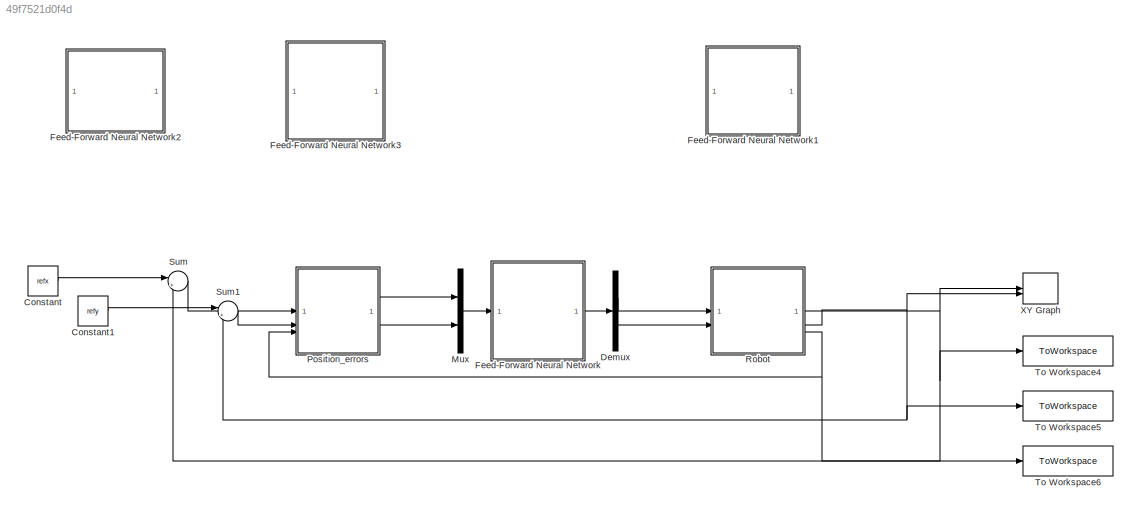
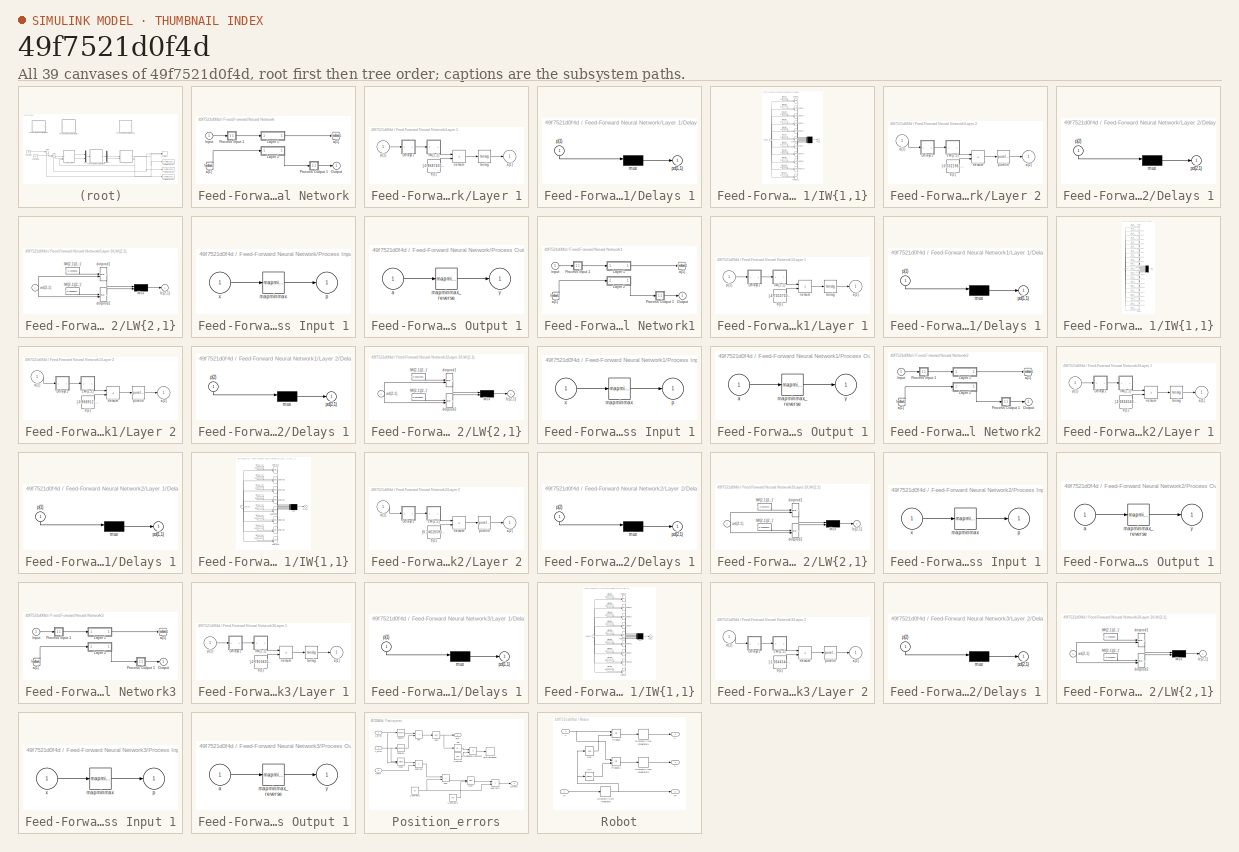
[diagram: thumbnail index - all 39 canvases of the model, root first then tree order]
MODEL slx_49f7521d0f4d
KIND model
CONFIG AbsTol = auto
CONFIG EnableMultiTasking = off
CONFIG FixedStep = Ts
CONFIG MaxStep = auto
CONFIG MinStep = auto
CONFIG RelTol = 1e-3
CONFIG SampleTimeConstraint = Unconstrained
CONFIG SolverName = FixedStepAuto
CONFIG StartTime = 0.0
CONFIG StopTime = 100.0
BLOCK [Constant] Constant
  Value = refx
BLOCK [Constant] Constant1
  Value = refy
BLOCK [Demux] Demux
  Outputs = 2
BLOCK [SubSystem] Feed-Forward Neural Network
BLOCK [From] Feed-Forward Neural Network/ a{1} 
  GotoTag = feedback1
BLOCK [Inport] Feed-Forward Neural Network/Input
  PortDimensions = 2
  SampleTime = 0.1
BLOCK [SubSystem] Feed-Forward Neural Network/Layer 1
BLOCK [SubSystem] Feed-Forward Neural Network/Layer 1/Delays 1
BLOCK [Mux] Feed-Forward Neural Network/Layer 1/Delays 1/mux
  Inputs = 1
BLOCK [Outport] Feed-Forward Neural Network/Layer 1/Delays 1/pd{1,1}
BLOCK [Inport] Feed-Forward Neural Network/Layer 1/Delays 1/p{1}
  NameLocation = left
  PortDimensions = 2
  SampleTime = 0.1
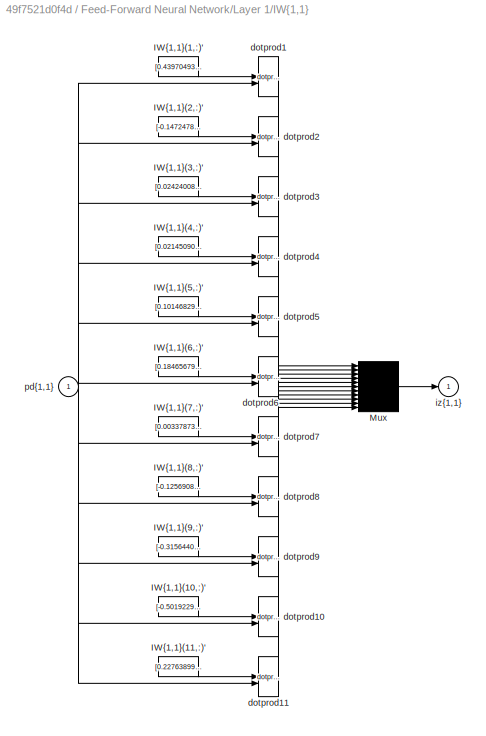
BLOCK [SubSystem] Feed-Forward Neural Network/Layer 1/IW{1,1}
BLOCK [Constant] Feed-Forward Neural Network/Layer 1/IW{1,1}/IW{1,1}(1,:)'
  Value = [0.439704932513484136880066444064141251146793365478515625;0.7086609780752703979800344313844107091426849365234375]
BLOCK [Constant] Feed-Forward Neural Network/Layer 1/IW{1,1}/IW{1,1}(10,:)'
  Value = [-0.50192294929402325731615519543993286788463592529296875;-1.3912564563766249836618271729093976318836212158203125]
BLOCK [Constant] Feed-Forward Neural Network/Layer 1/IW{1,1}/IW{1,1}(11,:)'
  Value = [0.2276389999912795392145170580988633446395397186279296875;1.36784031605833433786756359040737152099609375]
BLOCK [Constant] Feed-Forward Neural Network/Layer 1/IW{1,1}/IW{1,1}(2,:)'
  Value = [-0.1472478814908298183627977095966343767940998077392578125;1.743036186923095698375618667341768741607666015625]
BLOCK [Constant] Feed-Forward Neural Network/Layer 1/IW{1,1}/IW{1,1}(3,:)'
  Value = [0.02424008267233201951995624767732806503772735595703125;-2.936113704295068682625924338935874402523040771484375]
BLOCK [Constant] Feed-Forward Neural Network/Layer 1/IW{1,1}/IW{1,1}(4,:)'
  Value = [0.0214509049986390809561243031566846184432506561279296875;1.137131201421091031278365335310809314250946044921875]
BLOCK [Constant] Feed-Forward Neural Network/Layer 1/IW{1,1}/IW{1,1}(5,:)'
  Value = [0.1014682975703536105260837985042599029839038848876953125;1.27190819061665916223091699066571891307830810546875]
BLOCK [Constant] Feed-Forward Neural Network/Layer 1/IW{1,1}/IW{1,1}(6,:)'
  Value = [0.1846567910380278176862844929928542114794254302978515625;-1.33814563787409657180660360609181225299835205078125]
BLOCK [Constant] Feed-Forward Neural Network/Layer 1/IW{1,1}/IW{1,1}(7,:)'
  Value = [0.0033787336282521201157036383477816343656741082668304443359375;-1.79140319282260929156791462446562945842742919921875]
BLOCK [Constant] Feed-Forward Neural Network/Layer 1/IW{1,1}/IW{1,1}(8,:)'
  Value = [-0.125690823164508025389096701474045403301715850830078125;1.4549947563198315503285584782133810222148895263671875]
BLOCK [Constant] Feed-Forward Neural Network/Layer 1/IW{1,1}/IW{1,1}(9,:)'
  Value = [-0.315644048914274388817347016811254434287548065185546875;1.3571069938719000358418043106212280690670013427734375]
BLOCK [Mux] Feed-Forward Neural Network/Layer 1/IW{1,1}/Mux
  Inputs = 11
BLOCK [Reference] Feed-Forward Neural Network/Layer 1/IW{1,1}/dotprod1  REF=neural/Weight Functions/dotprod
  SourceBlock = neural/Weight Functions/dotprod
  SourceType = DOTPROD
BLOCK [Reference] Feed-Forward Neural Network/Layer 1/IW{1,1}/dotprod10  REF=neural/Weight Functions/dotprod
  SourceBlock = neural/Weight Functions/dotprod
  SourceType = DOTPROD
BLOCK [Reference] Feed-Forward Neural Network/Layer 1/IW{1,1}/dotprod11  REF=neural/Weight Functions/dotprod
  SourceBlock = neural/Weight Functions/dotprod
  SourceType = DOTPROD
BLOCK [Reference] Feed-Forward Neural Network/Layer 1/IW{1,1}/dotprod2  REF=neural/Weight Functions/dotprod
  SourceBlock = neural/Weight Functions/dotprod
  SourceType = DOTPROD
BLOCK [Reference] Feed-Forward Neural Network/Layer 1/IW{1,1}/dotprod3  REF=neural/Weight Functions/dotprod
  SourceBlock = neural/Weight Functions/dotprod
  SourceType = DOTPROD
BLOCK [Reference] Feed-Forward Neural Network/Layer 1/IW{1,1}/dotprod4  REF=neural/Weight Functions/dotprod
  SourceBlock = neural/Weight Functions/dotprod
  SourceType = DOTPROD
BLOCK [Reference] Feed-Forward Neural Network/Layer 1/IW{1,1}/dotprod5  REF=neural/Weight Functions/dotprod
  SourceBlock = neural/Weight Functions/dotprod
  SourceType = DOTPROD
BLOCK [Reference] Feed-Forward Neural Network/Layer 1/IW{1,1}/dotprod6  REF=neural/Weight Functions/dotprod
  SourceBlock = neural/Weight Functions/dotprod
  SourceType = DOTPROD
BLOCK [Reference] Feed-Forward Neural Network/Layer 1/IW{1,1}/dotprod7  REF=neural/Weight Functions/dotprod
  SourceBlock = neural/Weight Functions/dotprod
  SourceType = DOTPROD
BLOCK [Reference] Feed-Forward Neural Network/Layer 1/IW{1,1}/dotprod8  REF=neural/Weight Functions/dotprod
  SourceBlock = neural/Weight Functions/dotprod
  SourceType = DOTPROD
BLOCK [Reference] Feed-Forward Neural Network/Layer 1/IW{1,1}/dotprod9  REF=neural/Weight Functions/dotprod
  SourceBlock = neural/Weight Functions/dotprod
  SourceType = DOTPROD
BLOCK [Outport] Feed-Forward Neural Network/Layer 1/IW{1,1}/iz{1,1}
BLOCK [Inport] Feed-Forward Neural Network/Layer 1/IW{1,1}/pd{1,1}
  PortDimensions = 2
  SampleTime = 0.1
BLOCK [Outport] Feed-Forward Neural Network/Layer 1/a{1}
  InitialOutput = [0;0;0;0;0;0;0;0;0;0;0]
BLOCK [Constant] Feed-Forward Neural Network/Layer 1/b{1}
  Value = [-0.96874359296255263540587066017906181514263153076171875;1.447558030331815626112756945076398551464080810546875;-1.5436643280690465207527495294925756752490997314453125;-0.7918553421947598369712295607314445078372955322265625;-0.09946822950546339858757249885456985794007778167724609375;0.049681037609385129971695249651020276360213756561279296875;0.139975156855765447971862158738076686859130859375;-1.45...<+213ch>
BLOCK [Sum] Feed-Forward Neural Network/Layer 1/netsum
  IconShape = rectangular
  InputSameDT = on
  Inputs = 2
  OutDataTypeStr = Inherit: Same as first input
  SaturateOnIntegerOverflow = on
BLOCK [Inport] Feed-Forward Neural Network/Layer 1/p{1}
  PortDimensions = 2
  SampleTime = 0.1
BLOCK [Reference] Feed-Forward Neural Network/Layer 1/tansig  REF=neural/Transfer Functions/tansig
  SourceBlock = neural/Transfer Functions/tansig
  SourceType = TANSIG
BLOCK [SubSystem] Feed-Forward Neural Network/Layer 2
BLOCK [SubSystem] Feed-Forward Neural Network/Layer 2/Delays 1
BLOCK [Mux] Feed-Forward Neural Network/Layer 2/Delays 1/mux
  Inputs = 1
BLOCK [Outport] Feed-Forward Neural Network/Layer 2/Delays 1/pd{2,1}
BLOCK [Inport] Feed-Forward Neural Network/Layer 2/Delays 1/p{2}
  NameLocation = left
  PortDimensions = 11
  SampleTime = 0.1
BLOCK [SubSystem] Feed-Forward Neural Network/Layer 2/LW{2,1}
BLOCK [Constant] Feed-Forward Neural Network/Layer 2/LW{2,1}/IW{2,1}(1,:)'
  Value = [-0.11305355467527633539503995052655227482318878173828125;2.81671175793929950970095887896604835987091064453125;-0.08746067906817432680011137335895909927785396575927734375;-13.4183816550447989612848687102086842060089111328125;10.983986633040530023208702914416790008544921875;1.2265862570013748023001198816928081214427947998046875;2.6957685450309778474320410168729722499847412109375;6.58429268202682660...<+201ch>
BLOCK [Constant] Feed-Forward Neural Network/Layer 2/LW{2,1}/IW{2,1}(2,:)'
  Value = [0.459088414154186053028894320959807373583316802978515625;0.72618206977445798333548054870334453880786895751953125;0.468547705419585180930397427800926379859447479248046875;-6.0830803490470888306163033121265470981597900390625;-3.98879455840542629374567695776931941509246826171875;1.91091451795809508240608920459635555744171142578125;-6.41204672625628813165121755446307361125946044921875;9.4003980560431...<+201ch>
BLOCK [Mux] Feed-Forward Neural Network/Layer 2/LW{2,1}/Mux
  Inputs = 2
BLOCK [Inport] Feed-Forward Neural Network/Layer 2/LW{2,1}/ad{2,1}
  PortDimensions = 11
  SampleTime = 0.1
BLOCK [Reference] Feed-Forward Neural Network/Layer 2/LW{2,1}/dotprod1  REF=neural/Weight Functions/dotprod
  SourceBlock = neural/Weight Functions/dotprod
  SourceType = DOTPROD
BLOCK [Reference] Feed-Forward Neural Network/Layer 2/LW{2,1}/dotprod2  REF=neural/Weight Functions/dotprod
  SourceBlock = neural/Weight Functions/dotprod
  SourceType = DOTPROD
BLOCK [Outport] Feed-Forward Neural Network/Layer 2/LW{2,1}/lz{2,1}
BLOCK [Inport] Feed-Forward Neural Network/Layer 2/a{1} 
  PortDimensions = 11
  SampleTime = 0.1
BLOCK [Outport] Feed-Forward Neural Network/Layer 2/a{2}
  InitialOutput = [0;0]
BLOCK [Constant] Feed-Forward Neural Network/Layer 2/b{2}
  Value = [-0.53219612688316875193095256690867245197296142578125;0.09829054710531204275270056314184330403804779052734375]
BLOCK [Sum] Feed-Forward Neural Network/Layer 2/netsum
  IconShape = rectangular
  InputSameDT = on
  Inputs = 2
  OutDataTypeStr = Inherit: Same as first input
  SaturateOnIntegerOverflow = on
BLOCK [Reference] Feed-Forward Neural Network/Layer 2/purelin  REF=neural/Transfer Functions/purelin
  SourceBlock = neural/Transfer Functions/purelin
  SourceType = PURELIN
BLOCK [Outport] Feed-Forward Neural Network/Output
  InitialOutput = [0;0]
BLOCK [SubSystem] Feed-Forward Neural Network/Process Input 1
BLOCK [Reference] Feed-Forward Neural Network/Process Input 1/mapminmax  REF=neural/Processing Functions/mapminmax
  SourceBlock = neural/Processing Functions/mapminmax
  SourceType = MAPMINMAX Preprocess
BLOCK [Outport] Feed-Forward Neural Network/Process Input 1/p
  PortDimensions = 2
  SampleTime = 0.1
BLOCK [Inport] Feed-Forward Neural Network/Process Input 1/x
  PortDimensions = 2
  SampleTime = 0.1
BLOCK [SubSystem] Feed-Forward Neural Network/Process Output 1
BLOCK [Inport] Feed-Forward Neural Network/Process Output 1/a
  PortDimensions = 2
  SampleTime = 0.1
BLOCK [Reference] Feed-Forward Neural Network/Process Output 1/mapminmax_reverse  REF=neural/Processing Functions/mapminmax_reverse
  SourceBlock = neural/Processing Functions/mapminmax_reverse
  SourceType = MAPMINMAX Reverse Process
BLOCK [Outport] Feed-Forward Neural Network/Process Output 1/y
  PortDimensions = 2
  SampleTime = 0.1
BLOCK [Goto] Feed-Forward Neural Network/a{1}
  GotoTag = feedback1
BLOCK [SubSystem] Feed-Forward Neural Network1
BLOCK [From] Feed-Forward Neural Network1/ a{1} 
  GotoTag = feedback1
BLOCK [Inport] Feed-Forward Neural Network1/Input
  PortDimensions = 2
  SampleTime = 0.1
BLOCK [SubSystem] Feed-Forward Neural Network1/Layer 1
BLOCK [SubSystem] Feed-Forward Neural Network1/Layer 1/Delays 1
BLOCK [Mux] Feed-Forward Neural Network1/Layer 1/Delays 1/mux
  Inputs = 1
BLOCK [Outport] Feed-Forward Neural Network1/Layer 1/Delays 1/pd{1,1}
BLOCK [Inport] Feed-Forward Neural Network1/Layer 1/Delays 1/p{1}
  NameLocation = left
  PortDimensions = 2
  SampleTime = 0.1
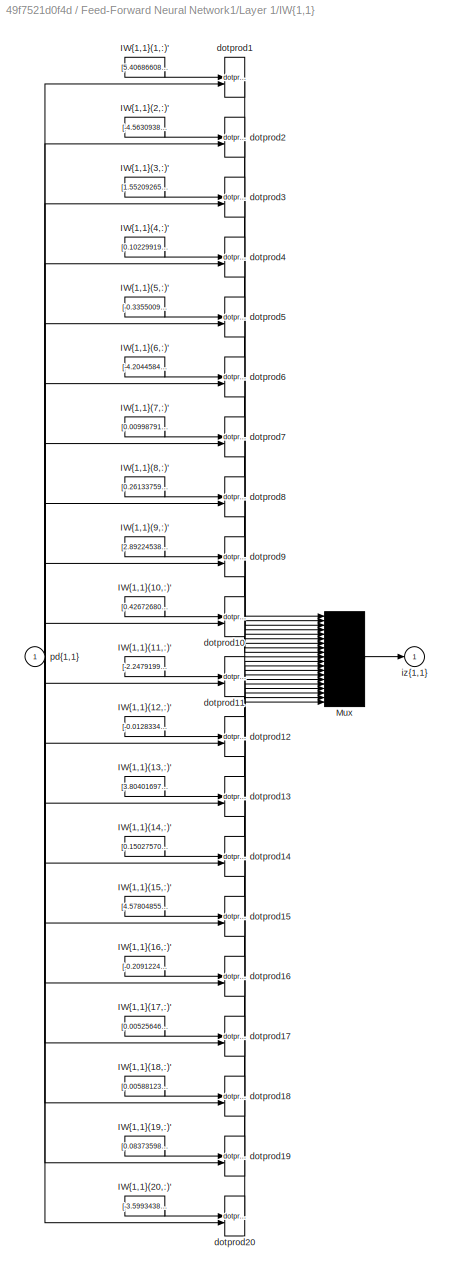
BLOCK [SubSystem] Feed-Forward Neural Network1/Layer 1/IW{1,1}
BLOCK [Constant] Feed-Forward Neural Network1/Layer 1/IW{1,1}/IW{1,1}(1,:)'
  Value = [5.406866085813259559245125274173915386199951171875;-0.7192846729598050270482190171605907380580902099609375]
BLOCK [Constant] Feed-Forward Neural Network1/Layer 1/IW{1,1}/IW{1,1}(10,:)'
  Value = [0.426726801554324186582789479871280491352081298828125;-0.8698524655469430655330143054015934467315673828125]
BLOCK [Constant] Feed-Forward Neural Network1/Layer 1/IW{1,1}/IW{1,1}(11,:)'
  Value = [-2.247919988466412721805909313843585550785064697265625;-2.683648631600556111465039066388271749019622802734375]
BLOCK [Constant] Feed-Forward Neural Network1/Layer 1/IW{1,1}/IW{1,1}(12,:)'
  Value = [-0.0128334661414282076574711055627631139941513538360595703125;2.18556254003053584966664857347495853900909423828125]
BLOCK [Constant] Feed-Forward Neural Network1/Layer 1/IW{1,1}/IW{1,1}(13,:)'
  Value = [3.80401697730812404785183389321900904178619384765625;-3.755462484274981083132161074900068342685699462890625]
BLOCK [Constant] Feed-Forward Neural Network1/Layer 1/IW{1,1}/IW{1,1}(14,:)'
  Value = [0.150275703455128473162716318256570957601070404052734375;-1.6748322063479770260840950868441723287105560302734375]
BLOCK [Constant] Feed-Forward Neural Network1/Layer 1/IW{1,1}/IW{1,1}(15,:)'
  Value = [4.57804855414706057814555606455542147159576416015625;0.482969758473349830563137174976873211562633514404296875]
BLOCK [Constant] Feed-Forward Neural Network1/Layer 1/IW{1,1}/IW{1,1}(16,:)'
  Value = [-0.209122422253329165453550331221777014434337615966796875;-1.2770789473824881721242263665772043168544769287109375]
BLOCK [Constant] Feed-Forward Neural Network1/Layer 1/IW{1,1}/IW{1,1}(17,:)'
  Value = [0.005256467958814636971809353127582653542049229145050048828125;1.9240330936396687899758717321674339473247528076171875]
BLOCK [Constant] Feed-Forward Neural Network1/Layer 1/IW{1,1}/IW{1,1}(18,:)'
  Value = [0.00588123016142372279091432574205100536346435546875;2.1972933928627629285301736672408878803253173828125]
BLOCK [Constant] Feed-Forward Neural Network1/Layer 1/IW{1,1}/IW{1,1}(19,:)'
  Value = [0.0837359868830020170893391195932053960859775543212890625;-1.4049265992784167877971412963233888149261474609375]
BLOCK [Constant] Feed-Forward Neural Network1/Layer 1/IW{1,1}/IW{1,1}(2,:)'
  Value = [-4.56309385690147184533316249144263565540313720703125;0.250391259861140247355848487131879664957523345947265625]
BLOCK [Constant] Feed-Forward Neural Network1/Layer 1/IW{1,1}/IW{1,1}(20,:)'
  Value = [-3.59934384202145718489873615908436477184295654296875;-3.33395357241987166929675368010066449642181396484375]
BLOCK [Constant] Feed-Forward Neural Network1/Layer 1/IW{1,1}/IW{1,1}(3,:)'
  Value = [1.5520926517667119615140336463809944689273834228515625;-6.27864578020012498171809056657366454601287841796875]
BLOCK [Constant] Feed-Forward Neural Network1/Layer 1/IW{1,1}/IW{1,1}(4,:)'
  Value = [0.10229919234449012799270661844275309704244136810302734375;1.5939660404222000256169167187181301414966583251953125]
BLOCK [Constant] Feed-Forward Neural Network1/Layer 1/IW{1,1}/IW{1,1}(5,:)'
  Value = [-0.335500949114776736426080105957225896418094635009765625;2.523478050233504799138017915538512170314788818359375]
BLOCK [Constant] Feed-Forward Neural Network1/Layer 1/IW{1,1}/IW{1,1}(6,:)'
  Value = [-4.20445847959297669405032138456590473651885986328125;-3.1995915039250899525313798221759498119354248046875]
BLOCK [Constant] Feed-Forward Neural Network1/Layer 1/IW{1,1}/IW{1,1}(7,:)'
  Value = [0.0099879175966002785302944033674066304229199886322021484375;2.315272978476814902393243755795992910861968994140625]
BLOCK [Constant] Feed-Forward Neural Network1/Layer 1/IW{1,1}/IW{1,1}(8,:)'
  Value = [0.26133759531960165656272465639631263911724090576171875;-2.30500664126972498735312910866923630237579345703125]
BLOCK [Constant] Feed-Forward Neural Network1/Layer 1/IW{1,1}/IW{1,1}(9,:)'
  Value = [2.892245387080128349310825797147117555141448974609375;2.814584337040328509971232051611877977848052978515625]
BLOCK [Mux] Feed-Forward Neural Network1/Layer 1/IW{1,1}/Mux
  Inputs = 20
BLOCK [Reference] Feed-Forward Neural Network1/Layer 1/IW{1,1}/dotprod1  REF=neural/Weight Functions/dotprod
  SourceBlock = neural/Weight Functions/dotprod
  SourceType = DOTPROD
BLOCK [Reference] Feed-Forward Neural Network1/Layer 1/IW{1,1}/dotprod10  REF=neural/Weight Functions/dotprod
  SourceBlock = neural/Weight Functions/dotprod
  SourceType = DOTPROD
BLOCK [Reference] Feed-Forward Neural Network1/Layer 1/IW{1,1}/dotprod11  REF=neural/Weight Functions/dotprod
  SourceBlock = neural/Weight Functions/dotprod
  SourceType = DOTPROD
BLOCK [Reference] Feed-Forward Neural Network1/Layer 1/IW{1,1}/dotprod12  REF=neural/Weight Functions/dotprod
  SourceBlock = neural/Weight Functions/dotprod
  SourceType = DOTPROD
BLOCK [Reference] Feed-Forward Neural Network1/Layer 1/IW{1,1}/dotprod13  REF=neural/Weight Functions/dotprod
  SourceBlock = neural/Weight Functions/dotprod
  SourceType = DOTPROD
BLOCK [Reference] Feed-Forward Neural Network1/Layer 1/IW{1,1}/dotprod14  REF=neural/Weight Functions/dotprod
  SourceBlock = neural/Weight Functions/dotprod
  SourceType = DOTPROD
BLOCK [Reference] Feed-Forward Neural Network1/Layer 1/IW{1,1}/dotprod15  REF=neural/Weight Functions/dotprod
  SourceBlock = neural/Weight Functions/dotprod
  SourceType = DOTPROD
BLOCK [Reference] Feed-Forward Neural Network1/Layer 1/IW{1,1}/dotprod16  REF=neural/Weight Functions/dotprod
  SourceBlock = neural/Weight Functions/dotprod
  SourceType = DOTPROD
BLOCK [Reference] Feed-Forward Neural Network1/Layer 1/IW{1,1}/dotprod17  REF=neural/Weight Functions/dotprod
  SourceBlock = neural/Weight Functions/dotprod
  SourceType = DOTPROD
BLOCK [Reference] Feed-Forward Neural Network1/Layer 1/IW{1,1}/dotprod18  REF=neural/Weight Functions/dotprod
  SourceBlock = neural/Weight Functions/dotprod
  SourceType = DOTPROD
BLOCK [Reference] Feed-Forward Neural Network1/Layer 1/IW{1,1}/dotprod19  REF=neural/Weight Functions/dotprod
  SourceBlock = neural/Weight Functions/dotprod
  SourceType = DOTPROD
BLOCK [Reference] Feed-Forward Neural Network1/Layer 1/IW{1,1}/dotprod2  REF=neural/Weight Functions/dotprod
  SourceBlock = neural/Weight Functions/dotprod
  SourceType = DOTPROD
BLOCK [Reference] Feed-Forward Neural Network1/Layer 1/IW{1,1}/dotprod20  REF=neural/Weight Functions/dotprod
  SourceBlock = neural/Weight Functions/dotprod
  SourceType = DOTPROD
BLOCK [Reference] Feed-Forward Neural Network1/Layer 1/IW{1,1}/dotprod3  REF=neural/Weight Functions/dotprod
  SourceBlock = neural/Weight Functions/dotprod
  SourceType = DOTPROD
BLOCK [Reference] Feed-Forward Neural Network1/Layer 1/IW{1,1}/dotprod4  REF=neural/Weight Functions/dotprod
  SourceBlock = neural/Weight Functions/dotprod
  SourceType = DOTPROD
BLOCK [Reference] Feed-Forward Neural Network1/Layer 1/IW{1,1}/dotprod5  REF=neural/Weight Functions/dotprod
  SourceBlock = neural/Weight Functions/dotprod
  SourceType = DOTPROD
BLOCK [Reference] Feed-Forward Neural Network1/Layer 1/IW{1,1}/dotprod6  REF=neural/Weight Functions/dotprod
  SourceBlock = neural/Weight Functions/dotprod
  SourceType = DOTPROD
BLOCK [Reference] Feed-Forward Neural Network1/Layer 1/IW{1,1}/dotprod7  REF=neural/Weight Functions/dotprod
  SourceBlock = neural/Weight Functions/dotprod
  SourceType = DOTPROD
BLOCK [Reference] Feed-Forward Neural Network1/Layer 1/IW{1,1}/dotprod8  REF=neural/Weight Functions/dotprod
  SourceBlock = neural/Weight Functions/dotprod
  SourceType = DOTPROD
BLOCK [Reference] Feed-Forward Neural Network1/Layer 1/IW{1,1}/dotprod9  REF=neural/Weight Functions/dotprod
  SourceBlock = neural/Weight Functions/dotprod
  SourceType = DOTPROD
BLOCK [Outport] Feed-Forward Neural Network1/Layer 1/IW{1,1}/iz{1,1}
BLOCK [Inport] Feed-Forward Neural Network1/Layer 1/IW{1,1}/pd{1,1}
  PortDimensions = 2
  SampleTime = 0.1
BLOCK [Outport] Feed-Forward Neural Network1/Layer 1/a{1}
  InitialOutput = [0;0;0;0;0;0;0;0;0;0;0;0;0;0;0;0;0;0;0;0]
BLOCK [Constant] Feed-Forward Neural Network1/Layer 1/b{1}
  Value = [-4.73537504935507680414730202755890786647796630859375;7.6035581076666840516509182634763419628143310546875;-6.22803191023465441134021602920256555080413818359375;-1.498058927850960397876178831211291253566741943359375;2.05986352072009548663800160284154117107391357421875;3.867008364343390791617594004492275416851043701171875;-1.3133223350243998783781762540456838905811309814453125;-1.032028205417381716...<+698ch>
BLOCK [Sum] Feed-Forward Neural Network1/Layer 1/netsum
  IconShape = rectangular
  InputSameDT = on
  Inputs = 2
  OutDataTypeStr = Inherit: Same as first input
  SaturateOnIntegerOverflow = on
BLOCK [Inport] Feed-Forward Neural Network1/Layer 1/p{1}
  PortDimensions = 2
  SampleTime = 0.1
BLOCK [Reference] Feed-Forward Neural Network1/Layer 1/tansig  REF=neural/Transfer Functions/tansig
  SourceBlock = neural/Transfer Functions/tansig
  SourceType = TANSIG
BLOCK [SubSystem] Feed-Forward Neural Network1/Layer 2
BLOCK [SubSystem] Feed-Forward Neural Network1/Layer 2/Delays 1
BLOCK [Mux] Feed-Forward Neural Network1/Layer 2/Delays 1/mux
  Inputs = 1
BLOCK [Outport] Feed-Forward Neural Network1/Layer 2/Delays 1/pd{2,1}
BLOCK [Inport] Feed-Forward Neural Network1/Layer 2/Delays 1/p{2}
  NameLocation = left
  PortDimensions = 20
  SampleTime = 0.1
BLOCK [SubSystem] Feed-Forward Neural Network1/Layer 2/LW{2,1}
BLOCK [Constant] Feed-Forward Neural Network1/Layer 2/LW{2,1}/IW{2,1}(1,:)'
  Value = [0.00514438244190796624411010640187669196166098117828369140625;0.60038560204872382097818217516760341823101043701171875;-0.281226586413507784190102256616228260099887847900390625;-5.17611258300775478602417933871038258075714111328125;3.1526751256361631448044136050157248973846435546875;-0.0026386221356254359847459678434233865118585526943206787109375;-0.4307323823583227295763720121613005176186561584472...<+752ch>
BLOCK [Constant] Feed-Forward Neural Network1/Layer 2/LW{2,1}/IW{2,1}(2,:)'
  Value = [0.00139864594129974280541095499330594975617714226245880126953125;0.1872170871895968702336432443189551122486591339111328125;0.0051075839155385882595084012791630811989307403564453125;0.91038257266838085168814131975523196160793304443359375;-0.03741356452910722663052212055845302529633045196533203125;-0.0002897110054382147164252214732726997681311331689357757568359375;-1.2862692773876132079635681293439...<+807ch>
BLOCK [Mux] Feed-Forward Neural Network1/Layer 2/LW{2,1}/Mux
  Inputs = 2
BLOCK [Inport] Feed-Forward Neural Network1/Layer 2/LW{2,1}/ad{2,1}
  PortDimensions = 20
  SampleTime = 0.1
BLOCK [Reference] Feed-Forward Neural Network1/Layer 2/LW{2,1}/dotprod1  REF=neural/Weight Functions/dotprod
  SourceBlock = neural/Weight Functions/dotprod
  SourceType = DOTPROD
BLOCK [Reference] Feed-Forward Neural Network1/Layer 2/LW{2,1}/dotprod2  REF=neural/Weight Functions/dotprod
  SourceBlock = neural/Weight Functions/dotprod
  SourceType = DOTPROD
BLOCK [Outport] Feed-Forward Neural Network1/Layer 2/LW{2,1}/lz{2,1}
BLOCK [Inport] Feed-Forward Neural Network1/Layer 2/a{1} 
  PortDimensions = 20
  SampleTime = 0.1
BLOCK [Outport] Feed-Forward Neural Network1/Layer 2/a{2}
  InitialOutput = [0;0]
BLOCK [Constant] Feed-Forward Neural Network1/Layer 2/b{2}
  Value = [-0.96891211395081544566210141056217253208160400390625;0.1780489836261848479725955485264421440660953521728515625]
BLOCK [Sum] Feed-Forward Neural Network1/Layer 2/netsum
  IconShape = rectangular
  InputSameDT = on
  Inputs = 2
  OutDataTypeStr = Inherit: Same as first input
  SaturateOnIntegerOverflow = on
BLOCK [Reference] Feed-Forward Neural Network1/Layer 2/purelin  REF=neural/Transfer Functions/purelin
  SourceBlock = neural/Transfer Functions/purelin
  SourceType = PURELIN
BLOCK [Outport] Feed-Forward Neural Network1/Output
  InitialOutput = [0;0]
BLOCK [SubSystem] Feed-Forward Neural Network1/Process Input 1
BLOCK [Reference] Feed-Forward Neural Network1/Process Input 1/mapminmax  REF=neural/Processing Functions/mapminmax
  SourceBlock = neural/Processing Functions/mapminmax
  SourceType = MAPMINMAX Preprocess
BLOCK [Outport] Feed-Forward Neural Network1/Process Input 1/p
  PortDimensions = 2
  SampleTime = 0.1
BLOCK [Inport] Feed-Forward Neural Network1/Process Input 1/x
  PortDimensions = 2
  SampleTime = 0.1
BLOCK [SubSystem] Feed-Forward Neural Network1/Process Output 1
BLOCK [Inport] Feed-Forward Neural Network1/Process Output 1/a
  PortDimensions = 2
  SampleTime = 0.1
BLOCK [Reference] Feed-Forward Neural Network1/Process Output 1/mapminmax_reverse  REF=neural/Processing Functions/mapminmax_reverse
  SourceBlock = neural/Processing Functions/mapminmax_reverse
  SourceType = MAPMINMAX Reverse Process
BLOCK [Outport] Feed-Forward Neural Network1/Process Output 1/y
  PortDimensions = 2
  SampleTime = 0.1
BLOCK [Goto] Feed-Forward Neural Network1/a{1}
  GotoTag = feedback1
BLOCK [SubSystem] Feed-Forward Neural Network2
BLOCK [From] Feed-Forward Neural Network2/ a{1} 
  GotoTag = feedback1
BLOCK [Inport] Feed-Forward Neural Network2/Input
  PortDimensions = 2
  SampleTime = 0.1
BLOCK [SubSystem] Feed-Forward Neural Network2/Layer 1
BLOCK [SubSystem] Feed-Forward Neural Network2/Layer 1/Delays 1
BLOCK [Mux] Feed-Forward Neural Network2/Layer 1/Delays 1/mux
  Inputs = 1
BLOCK [Outport] Feed-Forward Neural Network2/Layer 1/Delays 1/pd{1,1}
BLOCK [Inport] Feed-Forward Neural Network2/Layer 1/Delays 1/p{1}
  NameLocation = left
  PortDimensions = 2
  SampleTime = 0.1
BLOCK [SubSystem] Feed-Forward Neural Network2/Layer 1/IW{1,1}
BLOCK [Constant] Feed-Forward Neural Network2/Layer 1/IW{1,1}/IW{1,1}(1,:)'
  Value = [0.90682530888268619850833829332259483635425567626953125;2.456114019185274610634905911865644156932830810546875]
BLOCK [Constant] Feed-Forward Neural Network2/Layer 1/IW{1,1}/IW{1,1}(2,:)'
  Value = [1.2206646964840024427445541732595302164554595947265625;-1.93876949412869503674983207019977271556854248046875]
BLOCK [Constant] Feed-Forward Neural Network2/Layer 1/IW{1,1}/IW{1,1}(3,:)'
  Value = [-1.3209374750497711037411363577120937407016754150390625;-1.3303909730234442232443825560039840638637542724609375]
BLOCK [Constant] Feed-Forward Neural Network2/Layer 1/IW{1,1}/IW{1,1}(4,:)'
  Value = [-0.029893567608390368695037153656812733970582485198974609375;-2.917416175533334321556822033016942441463470458984375]
BLOCK [Constant] Feed-Forward Neural Network2/Layer 1/IW{1,1}/IW{1,1}(5,:)'
  Value = [-0.601711339142416701264437506324611604213714599609375;-1.96938761642131954232581847463734447956085205078125]
BLOCK [Constant] Feed-Forward Neural Network2/Layer 1/IW{1,1}/IW{1,1}(6,:)'
  Value = [0.313801872053323938072111332076019607484340667724609375;-4.00365876832879763469463796354830265045166015625]
BLOCK [Constant] Feed-Forward Neural Network2/Layer 1/IW{1,1}/IW{1,1}(7,:)'
  Value = [0.06681340551596780252818774670231505297124385833740234375;5.08573611588543794681527288048528134822845458984375]
BLOCK [Constant] Feed-Forward Neural Network2/Layer 1/IW{1,1}/IW{1,1}(8,:)'
  Value = [0.13025552802638051819172915202216245234012603759765625;5.40013378643915320509449884411878883838653564453125]
BLOCK [Mux] Feed-Forward Neural Network2/Layer 1/IW{1,1}/Mux
  Inputs = 8
BLOCK [Reference] Feed-Forward Neural Network2/Layer 1/IW{1,1}/dotprod1  REF=neural/Weight Functions/dotprod
  SourceBlock = neural/Weight Functions/dotprod
  SourceType = DOTPROD
BLOCK [Reference] Feed-Forward Neural Network2/Layer 1/IW{1,1}/dotprod2  REF=neural/Weight Functions/dotprod
  SourceBlock = neural/Weight Functions/dotprod
  SourceType = DOTPROD
BLOCK [Reference] Feed-Forward Neural Network2/Layer 1/IW{1,1}/dotprod3  REF=neural/Weight Functions/dotprod
  SourceBlock = neural/Weight Functions/dotprod
  SourceType = DOTPROD
BLOCK [Reference] Feed-Forward Neural Network2/Layer 1/IW{1,1}/dotprod4  REF=neural/Weight Functions/dotprod
  SourceBlock = neural/Weight Functions/dotprod
  SourceType = DOTPROD
BLOCK [Reference] Feed-Forward Neural Network2/Layer 1/IW{1,1}/dotprod5  REF=neural/Weight Functions/dotprod
  SourceBlock = neural/Weight Functions/dotprod
  SourceType = DOTPROD
BLOCK [Reference] Feed-Forward Neural Network2/Layer 1/IW{1,1}/dotprod6  REF=neural/Weight Functions/dotprod
  SourceBlock = neural/Weight Functions/dotprod
  SourceType = DOTPROD
BLOCK [Reference] Feed-Forward Neural Network2/Layer 1/IW{1,1}/dotprod7  REF=neural/Weight Functions/dotprod
  SourceBlock = neural/Weight Functions/dotprod
  SourceType = DOTPROD
BLOCK [Reference] Feed-Forward Neural Network2/Layer 1/IW{1,1}/dotprod8  REF=neural/Weight Functions/dotprod
  SourceBlock = neural/Weight Functions/dotprod
  SourceType = DOTPROD
BLOCK [Outport] Feed-Forward Neural Network2/Layer 1/IW{1,1}/iz{1,1}
BLOCK [Inport] Feed-Forward Neural Network2/Layer 1/IW{1,1}/pd{1,1}
  PortDimensions = 2
  SampleTime = 0.1
BLOCK [Outport] Feed-Forward Neural Network2/Layer 1/a{1}
  InitialOutput = [0;0;0;0;0;0;0;0]
BLOCK [Constant] Feed-Forward Neural Network2/Layer 1/b{1}
  Value = [-2.28345480523735222533332489547319710254669189453125;-1.5113129138915601945569733288721181452274322509765625;1.713577548911427328448553453199565410614013671875;0.2030482987306019559969882948280428536236286163330078125;-0.2318470933920289966945205151205300353467464447021484375;4.62728121827108207497758485260419547557830810546875;-2.08451980705485606648608154500834643840789794921875;5.395156090419...<+37ch>
BLOCK [Sum] Feed-Forward Neural Network2/Layer 1/netsum
  IconShape = rectangular
  InputSameDT = on
  Inputs = 2
  OutDataTypeStr = Inherit: Same as first input
  SaturateOnIntegerOverflow = on
BLOCK [Inport] Feed-Forward Neural Network2/Layer 1/p{1}
  PortDimensions = 2
  SampleTime = 0.1
BLOCK [Reference] Feed-Forward Neural Network2/Layer 1/tansig  REF=neural/Transfer Functions/tansig
  SourceBlock = neural/Transfer Functions/tansig
  SourceType = TANSIG
BLOCK [SubSystem] Feed-Forward Neural Network2/Layer 2
BLOCK [SubSystem] Feed-Forward Neural Network2/Layer 2/Delays 1
BLOCK [Mux] Feed-Forward Neural Network2/Layer 2/Delays 1/mux
  Inputs = 1
BLOCK [Outport] Feed-Forward Neural Network2/Layer 2/Delays 1/pd{2,1}
BLOCK [Inport] Feed-Forward Neural Network2/Layer 2/Delays 1/p{2}
  NameLocation = left
  PortDimensions = 8
  SampleTime = 0.1
BLOCK [SubSystem] Feed-Forward Neural Network2/Layer 2/LW{2,1}
BLOCK [Constant] Feed-Forward Neural Network2/Layer 2/LW{2,1}/IW{2,1}(1,:)'
  Value = [-2.20707141096509662503422077861614525318145751953125;-0.63947544204370132536752180385519750416278839111328125;-1.344087911836215898375712640699930489063262939453125;0.887768215027971763220193679444491863250732421875;-1.33925976035898397498158374219201505184173583984375;-1.6075539073564975023344914006884209811687469482421875;-0.2657831835958355259919017044012434780597686767578125;-0.1864322346921...<+43ch>
BLOCK [Constant] Feed-Forward Neural Network2/Layer 2/LW{2,1}/IW{2,1}(2,:)'
  Value = [0.048538106978596118334934317317674867808818817138671875;0.0574979868734548649200633008149452507495880126953125;0.017286708963314224851703926333357230760157108306884765625;-0.78563986494940962757027591578662395477294921875;0.06499877427397153517585337567652459256350994110107421875;-0.678186144798435197600383617100305855274200439453125;-0.1375846254530705692342706925046513788402080535888671875;0.5...<+53ch>
BLOCK [Mux] Feed-Forward Neural Network2/Layer 2/LW{2,1}/Mux
  Inputs = 2
BLOCK [Inport] Feed-Forward Neural Network2/Layer 2/LW{2,1}/ad{2,1}
  PortDimensions = 8
  SampleTime = 0.1
BLOCK [Reference] Feed-Forward Neural Network2/Layer 2/LW{2,1}/dotprod1  REF=neural/Weight Functions/dotprod
  SourceBlock = neural/Weight Functions/dotprod
  SourceType = DOTPROD
BLOCK [Reference] Feed-Forward Neural Network2/Layer 2/LW{2,1}/dotprod2  REF=neural/Weight Functions/dotprod
  SourceBlock = neural/Weight Functions/dotprod
  SourceType = DOTPROD
BLOCK [Outport] Feed-Forward Neural Network2/Layer 2/LW{2,1}/lz{2,1}
BLOCK [Inport] Feed-Forward Neural Network2/Layer 2/a{1} 
  PortDimensions = 8
  SampleTime = 0.1
BLOCK [Outport] Feed-Forward Neural Network2/Layer 2/a{2}
  InitialOutput = [0;0]
BLOCK [Constant] Feed-Forward Neural Network2/Layer 2/b{2}
  Value = [0.2462659559320865831910651877478812821209430694580078125;0.25059688491270726284909642345155589282512664794921875]
BLOCK [Sum] Feed-Forward Neural Network2/Layer 2/netsum
  IconShape = rectangular
  InputSameDT = on
  Inputs = 2
  OutDataTypeStr = Inherit: Same as first input
  SaturateOnIntegerOverflow = on
BLOCK [Reference] Feed-Forward Neural Network2/Layer 2/purelin  REF=neural/Transfer Functions/purelin
  SourceBlock = neural/Transfer Functions/purelin
  SourceType = PURELIN
BLOCK [Outport] Feed-Forward Neural Network2/Output
  InitialOutput = [0;0]
BLOCK [SubSystem] Feed-Forward Neural Network2/Process Input 1
BLOCK [Reference] Feed-Forward Neural Network2/Process Input 1/mapminmax  REF=neural/Processing Functions/mapminmax
  SourceBlock = neural/Processing Functions/mapminmax
  SourceType = MAPMINMAX Preprocess
BLOCK [Outport] Feed-Forward Neural Network2/Process Input 1/p
  PortDimensions = 2
  SampleTime = 0.1
BLOCK [Inport] Feed-Forward Neural Network2/Process Input 1/x
  PortDimensions = 2
  SampleTime = 0.1
BLOCK [SubSystem] Feed-Forward Neural Network2/Process Output 1
BLOCK [Inport] Feed-Forward Neural Network2/Process Output 1/a
  PortDimensions = 2
  SampleTime = 0.1
BLOCK [Reference] Feed-Forward Neural Network2/Process Output 1/mapminmax_reverse  REF=neural/Processing Functions/mapminmax_reverse
  SourceBlock = neural/Processing Functions/mapminmax_reverse
  SourceType = MAPMINMAX Reverse Process
BLOCK [Outport] Feed-Forward Neural Network2/Process Output 1/y
  PortDimensions = 2
  SampleTime = 0.1
BLOCK [Goto] Feed-Forward Neural Network2/a{1}
  GotoTag = feedback1
BLOCK [SubSystem] Feed-Forward Neural Network3
BLOCK [From] Feed-Forward Neural Network3/ a{1} 
  GotoTag = feedback1
BLOCK [Inport] Feed-Forward Neural Network3/Input
  PortDimensions = 2
  SampleTime = 0.1
BLOCK [SubSystem] Feed-Forward Neural Network3/Layer 1
BLOCK [SubSystem] Feed-Forward Neural Network3/Layer 1/Delays 1
BLOCK [Mux] Feed-Forward Neural Network3/Layer 1/Delays 1/mux
  Inputs = 1
BLOCK [Outport] Feed-Forward Neural Network3/Layer 1/Delays 1/pd{1,1}
BLOCK [Inport] Feed-Forward Neural Network3/Layer 1/Delays 1/p{1}
  NameLocation = left
  PortDimensions = 2
  SampleTime = 0.1
BLOCK [SubSystem] Feed-Forward Neural Network3/Layer 1/IW{1,1}
BLOCK [Constant] Feed-Forward Neural Network3/Layer 1/IW{1,1}/IW{1,1}(1,:)'
  Value = [-0.035910856759987598574301870257841073907911777496337890625;-2.2280979331697192691308373468928039073944091796875]
BLOCK [Constant] Feed-Forward Neural Network3/Layer 1/IW{1,1}/IW{1,1}(2,:)'
  Value = [-4.88490229491460414834591574617661535739898681640625;3.35370627532550980021142095210961997509002685546875]
BLOCK [Constant] Feed-Forward Neural Network3/Layer 1/IW{1,1}/IW{1,1}(3,:)'
  Value = [1.253900516134204057294709855341352522373199462890625;1.829093814012650920375335772405378520488739013671875]
BLOCK [Constant] Feed-Forward Neural Network3/Layer 1/IW{1,1}/IW{1,1}(4,:)'
  Value = [-0.2000691721528489452897048295199056155979633331298828125;3.384461840791273434803088093758560717105865478515625]
BLOCK [Constant] Feed-Forward Neural Network3/Layer 1/IW{1,1}/IW{1,1}(5,:)'
  Value = [-3.90443521827797734857767864014022052288055419921875;-0.32360434558653350389789693508646450936794281005859375]
BLOCK [Constant] Feed-Forward Neural Network3/Layer 1/IW{1,1}/IW{1,1}(6,:)'
  Value = [1.0506246271792656354904238469316624104976654052734375;-0.342262284785991799385129752408829517662525177001953125]
BLOCK [Constant] Feed-Forward Neural Network3/Layer 1/IW{1,1}/IW{1,1}(7,:)'
  Value = [-0.4262211897277154992735859195818193256855010986328125;1.7565759368173583521155478592845611274242401123046875]
BLOCK [Constant] Feed-Forward Neural Network3/Layer 1/IW{1,1}/IW{1,1}(8,:)'
  Value = [0.60146570849423974802760994862182997167110443115234375;2.997880846240781327338709161267615854740142822265625]
BLOCK [Constant] Feed-Forward Neural Network3/Layer 1/IW{1,1}/IW{1,1}(9,:)'
  Value = [3.826182749590026244135287925018928945064544677734375;-0.257273506872152724067603912772028706967830657958984375]
BLOCK [Mux] Feed-Forward Neural Network3/Layer 1/IW{1,1}/Mux
  Inputs = 9
BLOCK [Reference] Feed-Forward Neural Network3/Layer 1/IW{1,1}/dotprod1  REF=neural/Weight Functions/dotprod
  SourceBlock = neural/Weight Functions/dotprod
  SourceType = DOTPROD
BLOCK [Reference] Feed-Forward Neural Network3/Layer 1/IW{1,1}/dotprod2  REF=neural/Weight Functions/dotprod
  SourceBlock = neural/Weight Functions/dotprod
  SourceType = DOTPROD
BLOCK [Reference] Feed-Forward Neural Network3/Layer 1/IW{1,1}/dotprod3  REF=neural/Weight Functions/dotprod
  SourceBlock = neural/Weight Functions/dotprod
  SourceType = DOTPROD
BLOCK [Reference] Feed-Forward Neural Network3/Layer 1/IW{1,1}/dotprod4  REF=neural/Weight Functions/dotprod
  SourceBlock = neural/Weight Functions/dotprod
  SourceType = DOTPROD
BLOCK [Reference] Feed-Forward Neural Network3/Layer 1/IW{1,1}/dotprod5  REF=neural/Weight Functions/dotprod
  SourceBlock = neural/Weight Functions/dotprod
  SourceType = DOTPROD
BLOCK [Reference] Feed-Forward Neural Network3/Layer 1/IW{1,1}/dotprod6  REF=neural/Weight Functions/dotprod
  SourceBlock = neural/Weight Functions/dotprod
  SourceType = DOTPROD
BLOCK [Reference] Feed-Forward Neural Network3/Layer 1/IW{1,1}/dotprod7  REF=neural/Weight Functions/dotprod
  SourceBlock = neural/Weight Functions/dotprod
  SourceType = DOTPROD
BLOCK [Reference] Feed-Forward Neural Network3/Layer 1/IW{1,1}/dotprod8  REF=neural/Weight Functions/dotprod
  SourceBlock = neural/Weight Functions/dotprod
  SourceType = DOTPROD
BLOCK [Reference] Feed-Forward Neural Network3/Layer 1/IW{1,1}/dotprod9  REF=neural/Weight Functions/dotprod
  SourceBlock = neural/Weight Functions/dotprod
  SourceType = DOTPROD
BLOCK [Outport] Feed-Forward Neural Network3/Layer 1/IW{1,1}/iz{1,1}
BLOCK [Inport] Feed-Forward Neural Network3/Layer 1/IW{1,1}/pd{1,1}
  PortDimensions = 2
  SampleTime = 0.1
BLOCK [Outport] Feed-Forward Neural Network3/Layer 1/a{1}
  InitialOutput = [0;0;0;0;0;0;0;0;0]
BLOCK [Constant] Feed-Forward Neural Network3/Layer 1/b{1}
  Value = [-0.78104358412348073859021724274498410522937774658203125;2.86272984182922751728028742945753037929534912109375;0.020974297715774435635349703943575150333344936370849609375;-0.2024448875905056899338063658433384262025356292724609375;1.5875727802529711052414995720027945935726165771484375;0.1555920204351743663107043857962707988917827606201171875;-0.132425352799972639861181278320145793259143829345703125...<+109ch>
BLOCK [Sum] Feed-Forward Neural Network3/Layer 1/netsum
  IconShape = rectangular
  InputSameDT = on
  Inputs = 2
  OutDataTypeStr = Inherit: Same as first input
  SaturateOnIntegerOverflow = on
BLOCK [Inport] Feed-Forward Neural Network3/Layer 1/p{1}
  PortDimensions = 2
  SampleTime = 0.1
BLOCK [Reference] Feed-Forward Neural Network3/Layer 1/tansig  REF=neural/Transfer Functions/tansig
  SourceBlock = neural/Transfer Functions/tansig
  SourceType = TANSIG
BLOCK [SubSystem] Feed-Forward Neural Network3/Layer 2
BLOCK [SubSystem] Feed-Forward Neural Network3/Layer 2/Delays 1
BLOCK [Mux] Feed-Forward Neural Network3/Layer 2/Delays 1/mux
  Inputs = 1
BLOCK [Outport] Feed-Forward Neural Network3/Layer 2/Delays 1/pd{2,1}
BLOCK [Inport] Feed-Forward Neural Network3/Layer 2/Delays 1/p{2}
  NameLocation = left
  PortDimensions = 9
  SampleTime = 0.1
BLOCK [SubSystem] Feed-Forward Neural Network3/Layer 2/LW{2,1}
BLOCK [Constant] Feed-Forward Neural Network3/Layer 2/LW{2,1}/IW{2,1}(1,:)'
  Value = [-1.7933282429444641348226241461816243827342987060546875;0.058588021817568558535782585749984718859195709228515625;0.38714696496451228568957958486862480640411376953125;0.6554637750650924576945044464082457125186920166015625;-0.006000735712984463232633203233490348793566226959228515625;-0.83499731445589642220284076756797730922698974609375;-2.95143477335441861697518106666393578052520751953125;-0.367171...<+106ch>
BLOCK [Constant] Feed-Forward Neural Network3/Layer 2/LW{2,1}/IW{2,1}(2,:)'
  Value = [-0.214506122458743286873783517876290716230869293212890625;0.00415659155829021555172975155301173799671232700347900390625;0.1033267037243378594357778865742147900164127349853515625;0.87516803906224927001034075146890245378017425537109375;0.01583789209568169098485412860100041143596172332763671875;-0.27946501272762336309796182831632904708385467529296875;-0.7635178678898196791280383877165149897336959838...<+127ch>
BLOCK [Mux] Feed-Forward Neural Network3/Layer 2/LW{2,1}/Mux
  Inputs = 2
BLOCK [Inport] Feed-Forward Neural Network3/Layer 2/LW{2,1}/ad{2,1}
  PortDimensions = 9
  SampleTime = 0.1
BLOCK [Reference] Feed-Forward Neural Network3/Layer 2/LW{2,1}/dotprod1  REF=neural/Weight Functions/dotprod
  SourceBlock = neural/Weight Functions/dotprod
  SourceType = DOTPROD
BLOCK [Reference] Feed-Forward Neural Network3/Layer 2/LW{2,1}/dotprod2  REF=neural/Weight Functions/dotprod
  SourceBlock = neural/Weight Functions/dotprod
  SourceType = DOTPROD
BLOCK [Outport] Feed-Forward Neural Network3/Layer 2/LW{2,1}/lz{2,1}
BLOCK [Inport] Feed-Forward Neural Network3/Layer 2/a{1} 
  PortDimensions = 9
  SampleTime = 0.1
BLOCK [Outport] Feed-Forward Neural Network3/Layer 2/a{2}
  InitialOutput = [0;0]
BLOCK [Constant] Feed-Forward Neural Network3/Layer 2/b{2}
  Value = [-1.064454408492483850068310857750475406646728515625;0.2461804769956607852332552965890499763190746307373046875]
BLOCK [Sum] Feed-Forward Neural Network3/Layer 2/netsum
  IconShape = rectangular
  InputSameDT = on
  Inputs = 2
  OutDataTypeStr = Inherit: Same as first input
  SaturateOnIntegerOverflow = on
BLOCK [Reference] Feed-Forward Neural Network3/Layer 2/purelin  REF=neural/Transfer Functions/purelin
  SourceBlock = neural/Transfer Functions/purelin
  SourceType = PURELIN
BLOCK [Outport] Feed-Forward Neural Network3/Output
  InitialOutput = [0;0]
BLOCK [SubSystem] Feed-Forward Neural Network3/Process Input 1
BLOCK [Reference] Feed-Forward Neural Network3/Process Input 1/mapminmax  REF=neural/Processing Functions/mapminmax
  SourceBlock = neural/Processing Functions/mapminmax
  SourceType = MAPMINMAX Preprocess
BLOCK [Outport] Feed-Forward Neural Network3/Process Input 1/p
  PortDimensions = 2
  SampleTime = 0.1
BLOCK [Inport] Feed-Forward Neural Network3/Process Input 1/x
  PortDimensions = 2
  SampleTime = 0.1
BLOCK [SubSystem] Feed-Forward Neural Network3/Process Output 1
BLOCK [Inport] Feed-Forward Neural Network3/Process Output 1/a
  PortDimensions = 2
  SampleTime = 0.1
BLOCK [Reference] Feed-Forward Neural Network3/Process Output 1/mapminmax_reverse  REF=neural/Processing Functions/mapminmax_reverse
  SourceBlock = neural/Processing Functions/mapminmax_reverse
  SourceType = MAPMINMAX Reverse Process
BLOCK [Outport] Feed-Forward Neural Network3/Process Output 1/y
  PortDimensions = 2
  SampleTime = 0.1
BLOCK [Goto] Feed-Forward Neural Network3/a{1}
  GotoTag = feedback1
BLOCK [Mux] Mux
  DisplayOption = bar
  Inputs = 2
BLOCK [SubSystem] Position_errors
BLOCK [Abs] Position_errors/Abs
  SaturateOnIntegerOverflow = off
BLOCK [Sum] Position_errors/Add
  IconShape = rectangular
BLOCK [Sum] Position_errors/Add1
  IconShape = rectangular
BLOCK [Trigonometry] Position_errors/Atan2
  Operator = atan2
BLOCK [Constant] Position_errors/Constant
  Value = 0.01
BLOCK [Constant] Position_errors/Constant2
  Value = pi
BLOCK [Constant] Position_errors/Constant3
  Value = 2 * pi
BLOCK [Outport] Position_errors/E_d
BLOCK [Outport] Position_errors/E_theta
  Port = 2
BLOCK [Math] Position_errors/Mod
  Operator = mod
BLOCK [RelationalOperator] Position_errors/Relational Operator
  InputSameDT = off
  Operator = <=
  OutDataTypeStr = boolean
  RndMeth = Simplest
BLOCK [Sqrt] Position_errors/Sqrt
BLOCK [Math] Position_errors/Square
  Operator = square
BLOCK [Math] Position_errors/Square1
  Operator = square
BLOCK [Stop] Position_errors/Stop Simulation
BLOCK [Sum] Position_errors/Subtract
  IconShape = rectangular
  Inputs = +-
BLOCK [Sum] Position_errors/Subtract1
  IconShape = rectangular
  Inputs = +-
BLOCK [Inport] Position_errors/theta
  Port = 3
BLOCK [Inport] Position_errors/x_error
BLOCK [Inport] Position_errors/y_error
  Port = 2
BLOCK [SubSystem] Robot
BLOCK [Trigonometry] Robot/Cos
  Operator = cos
BLOCK [DiscreteIntegrator] Robot/Discrete-Time Integrator
  ICPrevOutput = DiscIntNeverNeededParam
  ICPrevScaledInput = DiscIntNeverNeededParam
  InitialConditionSetting = Auto
  SampleTime = -1
BLOCK [DiscreteIntegrator] Robot/Discrete-Time Integrator1
  ICPrevOutput = DiscIntNeverNeededParam
  ICPrevScaledInput = DiscIntNeverNeededParam
  InitialConditionSetting = Auto
  SampleTime = -1
BLOCK [DiscreteIntegrator] Robot/Discrete-Time Integrator2
  ICPrevOutput = DiscIntNeverNeededParam
  ICPrevScaledInput = DiscIntNeverNeededParam
  InitialConditionSetting = Auto
  SampleTime = -1
BLOCK [Product] Robot/Product
BLOCK [Product] Robot/Product1
BLOCK [Trigonometry] Robot/Sin
BLOCK [Inport] Robot/V
BLOCK [Outport] Robot/ori
  Port = 3
BLOCK [Inport] Robot/w
  Port = 2
BLOCK [Outport] Robot/x
BLOCK [Outport] Robot/y
  Port = 2
BLOCK [Sum] Sum
  Inputs = |+-
BLOCK [Sum] Sum1
  Inputs = |+-
BLOCK [ToWorkspace] To Workspace4
  FixptAsFi = on
  MaxDataPoints = inf
  SampleTime = -1
  SaveFormat = Timeseries
  VariableName = salida_x
BLOCK [ToWorkspace] To Workspace5
  FixptAsFi = on
  MaxDataPoints = inf
  SampleTime = -1
  SaveFormat = Timeseries
  VariableName = salida_y
BLOCK [ToWorkspace] To Workspace6
  FixptAsFi = on
  MaxDataPoints = inf
  SampleTime = -1
  SaveFormat = Timeseries
  VariableName = salida_theta
BLOCK [Record] XY Graph
  CompatibilityTag = XY
  FileSettingsInternal = {"entries":[{"content":{"excelSettings":{"content":{},"type":"Streamout.ExcelSettings"}},"type":"Streamout.FileSettingStorage","uuid":""}],"packageUris":["http:\/\/schema.mathworks.com\/mf0\/streamout_blocks\/R2020a"],"version":"1.0"}
  Layout = [1 1]
  SignalsInternal = {"entries":[{"content":{"signals":[{"content":{"blockPath":[],"dimensions":[1],"domain":"","lineColor":"#a2142f","plots":[1],"port":1,"signalID":18076,"signalName":"Robot:1"},"type":"RecordBlkView.Signal","uuid":""},{"content":{"blockPath":[],"dimensions":[1],"domain":"","lineColor":"#139fff","plots":[1],"port":2,"signalID":18079,"signalName":"Robot:2"},"type":"RecordBlkView.Signal","uuid":""}]},"...<+142ch>
  VisualizationBindings = {"xyplotplugin":{"info":[{"series":[{"bindingParametersList":[{"parameter":"X-Axis","signalID":18076,"signalName":"Robot:1"},{"parameter":"Y-Axis","signalID":18079,"signalName":"Robot:2"}],"seriesID":54163}],"subplotID":1}]}}
LINE Constant1:1 -> Sum1:1
LINE Constant:1 -> Sum:1
LINE Demux:1 -> Robot:1
LINE Demux:2 -> Robot:2
LINE Feed-Forward Neural Network/ a{1} :1 -> Feed-Forward Neural Network/Layer 2:1
LINE Feed-Forward Neural Network/Input:1 -> Feed-Forward Neural Network/Process Input 1:1
LINE Feed-Forward Neural Network/Layer 1/Delays 1/mux:1 -> Feed-Forward Neural Network/Layer 1/Delays 1/pd{1,1}:1
LINE Feed-Forward Neural Network/Layer 1/Delays 1/p{1}:1 -> Feed-Forward Neural Network/Layer 1/Delays 1/mux:1
LINE Feed-Forward Neural Network/Layer 1/Delays 1:1 -> Feed-Forward Neural Network/Layer 1/IW{1,1}:1
LINE Feed-Forward Neural Network/Layer 1/IW{1,1}/IW{1,1}(1,:)':1 -> Feed-Forward Neural Network/Layer 1/IW{1,1}/dotprod1:1
LINE Feed-Forward Neural Network/Layer 1/IW{1,1}/IW{1,1}(10,:)':1 -> Feed-Forward Neural Network/Layer 1/IW{1,1}/dotprod10:1
LINE Feed-Forward Neural Network/Layer 1/IW{1,1}/IW{1,1}(11,:)':1 -> Feed-Forward Neural Network/Layer 1/IW{1,1}/dotprod11:1
LINE Feed-Forward Neural Network/Layer 1/IW{1,1}/IW{1,1}(2,:)':1 -> Feed-Forward Neural Network/Layer 1/IW{1,1}/dotprod2:1
LINE Feed-Forward Neural Network/Layer 1/IW{1,1}/IW{1,1}(3,:)':1 -> Feed-Forward Neural Network/Layer 1/IW{1,1}/dotprod3:1
LINE Feed-Forward Neural Network/Layer 1/IW{1,1}/IW{1,1}(4,:)':1 -> Feed-Forward Neural Network/Layer 1/IW{1,1}/dotprod4:1
LINE Feed-Forward Neural Network/Layer 1/IW{1,1}/IW{1,1}(5,:)':1 -> Feed-Forward Neural Network/Layer 1/IW{1,1}/dotprod5:1
LINE Feed-Forward Neural Network/Layer 1/IW{1,1}/IW{1,1}(6,:)':1 -> Feed-Forward Neural Network/Layer 1/IW{1,1}/dotprod6:1
LINE Feed-Forward Neural Network/Layer 1/IW{1,1}/IW{1,1}(7,:)':1 -> Feed-Forward Neural Network/Layer 1/IW{1,1}/dotprod7:1
LINE Feed-Forward Neural Network/Layer 1/IW{1,1}/IW{1,1}(8,:)':1 -> Feed-Forward Neural Network/Layer 1/IW{1,1}/dotprod8:1
LINE Feed-Forward Neural Network/Layer 1/IW{1,1}/IW{1,1}(9,:)':1 -> Feed-Forward Neural Network/Layer 1/IW{1,1}/dotprod9:1
LINE Feed-Forward Neural Network/Layer 1/IW{1,1}/Mux:1 -> Feed-Forward Neural Network/Layer 1/IW{1,1}/iz{1,1}:1
LINE Feed-Forward Neural Network/Layer 1/IW{1,1}/dotprod10:1 -> Feed-Forward Neural Network/Layer 1/IW{1,1}/Mux:10
LINE Feed-Forward Neural Network/Layer 1/IW{1,1}/dotprod11:1 -> Feed-Forward Neural Network/Layer 1/IW{1,1}/Mux:11
LINE Feed-Forward Neural Network/Layer 1/IW{1,1}/dotprod1:1 -> Feed-Forward Neural Network/Layer 1/IW{1,1}/Mux:1
LINE Feed-Forward Neural Network/Layer 1/IW{1,1}/dotprod2:1 -> Feed-Forward Neural Network/Layer 1/IW{1,1}/Mux:2
LINE Feed-Forward Neural Network/Layer 1/IW{1,1}/dotprod3:1 -> Feed-Forward Neural Network/Layer 1/IW{1,1}/Mux:3
LINE Feed-Forward Neural Network/Layer 1/IW{1,1}/dotprod4:1 -> Feed-Forward Neural Network/Layer 1/IW{1,1}/Mux:4
LINE Feed-Forward Neural Network/Layer 1/IW{1,1}/dotprod5:1 -> Feed-Forward Neural Network/Layer 1/IW{1,1}/Mux:5
LINE Feed-Forward Neural Network/Layer 1/IW{1,1}/dotprod6:1 -> Feed-Forward Neural Network/Layer 1/IW{1,1}/Mux:6
LINE Feed-Forward Neural Network/Layer 1/IW{1,1}/dotprod7:1 -> Feed-Forward Neural Network/Layer 1/IW{1,1}/Mux:7
LINE Feed-Forward Neural Network/Layer 1/IW{1,1}/dotprod8:1 -> Feed-Forward Neural Network/Layer 1/IW{1,1}/Mux:8
LINE Feed-Forward Neural Network/Layer 1/IW{1,1}/dotprod9:1 -> Feed-Forward Neural Network/Layer 1/IW{1,1}/Mux:9
NET Feed-Forward Neural Network/Layer 1/IW{1,1}/pd{1,1}:1 -> Feed-Forward Neural Network/Layer 1/IW{1,1}/dotprod10:2, Feed-Forward Neural Network/Layer 1/IW{1,1}/dotprod11:2, Feed-Forward Neural Network/Layer 1/IW{1,1}/dotprod1:2, Feed-Forward Neural Network/Layer 1/IW{1,1}/dotprod2:2, Feed-Forward Neural Network/Layer 1/IW{1,1}/dotprod3:2, Feed-Forward Neural Network/Layer 1/IW{1,1}/dotprod4:2, Feed-Forward Neural Network/Layer 1/IW{1,1}/dotprod5:2, Feed-Forward Neural Network/Layer 1/IW{1,1}/dotprod6:2, Feed-Forward Neural Network/Layer 1/IW{1,1}/dotprod7:2, Feed-Forward Neural Network/Layer 1/IW{1,1}/dotprod8:2, Feed-Forward Neural Network/Layer 1/IW{1,1}/dotprod9:2
LINE Feed-Forward Neural Network/Layer 1/IW{1,1}:1 -> Feed-Forward Neural Network/Layer 1/netsum:1
LINE Feed-Forward Neural Network/Layer 1/b{1}:1 -> Feed-Forward Neural Network/Layer 1/netsum:2
LINE Feed-Forward Neural Network/Layer 1/netsum:1 -> Feed-Forward Neural Network/Layer 1/tansig:1
LINE Feed-Forward Neural Network/Layer 1/p{1}:1 -> Feed-Forward Neural Network/Layer 1/Delays 1:1
LINE Feed-Forward Neural Network/Layer 1/tansig:1 -> Feed-Forward Neural Network/Layer 1/a{1}:1
LINE Feed-Forward Neural Network/Layer 1:1 -> Feed-Forward Neural Network/a{1}:1
LINE Feed-Forward Neural Network/Layer 2/Delays 1/mux:1 -> Feed-Forward Neural Network/Layer 2/Delays 1/pd{2,1}:1
LINE Feed-Forward Neural Network/Layer 2/Delays 1/p{2}:1 -> Feed-Forward Neural Network/Layer 2/Delays 1/mux:1
LINE Feed-Forward Neural Network/Layer 2/Delays 1:1 -> Feed-Forward Neural Network/Layer 2/LW{2,1}:1
LINE Feed-Forward Neural Network/Layer 2/LW{2,1}/IW{2,1}(1,:)':1 -> Feed-Forward Neural Network/Layer 2/LW{2,1}/dotprod1:1
LINE Feed-Forward Neural Network/Layer 2/LW{2,1}/IW{2,1}(2,:)':1 -> Feed-Forward Neural Network/Layer 2/LW{2,1}/dotprod2:1
LINE Feed-Forward Neural Network/Layer 2/LW{2,1}/Mux:1 -> Feed-Forward Neural Network/Layer 2/LW{2,1}/lz{2,1}:1
NET Feed-Forward Neural Network/Layer 2/LW{2,1}/ad{2,1}:1 -> Feed-Forward Neural Network/Layer 2/LW{2,1}/dotprod1:2, Feed-Forward Neural Network/Layer 2/LW{2,1}/dotprod2:2
LINE Feed-Forward Neural Network/Layer 2/LW{2,1}/dotprod1:1 -> Feed-Forward Neural Network/Layer 2/LW{2,1}/Mux:1
LINE Feed-Forward Neural Network/Layer 2/LW{2,1}/dotprod2:1 -> Feed-Forward Neural Network/Layer 2/LW{2,1}/Mux:2
LINE Feed-Forward Neural Network/Layer 2/LW{2,1}:1 -> Feed-Forward Neural Network/Layer 2/netsum:1
LINE Feed-Forward Neural Network/Layer 2/a{1} :1 -> Feed-Forward Neural Network/Layer 2/Delays 1:1
LINE Feed-Forward Neural Network/Layer 2/b{2}:1 -> Feed-Forward Neural Network/Layer 2/netsum:2
LINE Feed-Forward Neural Network/Layer 2/netsum:1 -> Feed-Forward Neural Network/Layer 2/purelin:1
LINE Feed-Forward Neural Network/Layer 2/purelin:1 -> Feed-Forward Neural Network/Layer 2/a{2}:1
LINE Feed-Forward Neural Network/Layer 2:1 -> Feed-Forward Neural Network/Process Output 1:1
LINE Feed-Forward Neural Network/Process Input 1/mapminmax:1 -> Feed-Forward Neural Network/Process Input 1/p:1
LINE Feed-Forward Neural Network/Process Input 1/x:1 -> Feed-Forward Neural Network/Process Input 1/mapminmax:1
LINE Feed-Forward Neural Network/Process Input 1:1 -> Feed-Forward Neural Network/Layer 1:1
LINE Feed-Forward Neural Network/Process Output 1/a:1 -> Feed-Forward Neural Network/Process Output 1/mapminmax_reverse:1
LINE Feed-Forward Neural Network/Process Output 1/mapminmax_reverse:1 -> Feed-Forward Neural Network/Process Output 1/y:1
LINE Feed-Forward Neural Network/Process Output 1:1 -> Feed-Forward Neural Network/Output:1
LINE Feed-Forward Neural Network1/ a{1} :1 -> Feed-Forward Neural Network1/Layer 2:1
LINE Feed-Forward Neural Network1/Input:1 -> Feed-Forward Neural Network1/Process Input 1:1
LINE Feed-Forward Neural Network1/Layer 1/Delays 1/mux:1 -> Feed-Forward Neural Network1/Layer 1/Delays 1/pd{1,1}:1
LINE Feed-Forward Neural Network1/Layer 1/Delays 1/p{1}:1 -> Feed-Forward Neural Network1/Layer 1/Delays 1/mux:1
LINE Feed-Forward Neural Network1/Layer 1/Delays 1:1 -> Feed-Forward Neural Network1/Layer 1/IW{1,1}:1
LINE Feed-Forward Neural Network1/Layer 1/IW{1,1}/IW{1,1}(1,:)':1 -> Feed-Forward Neural Network1/Layer 1/IW{1,1}/dotprod1:1
LINE Feed-Forward Neural Network1/Layer 1/IW{1,1}/IW{1,1}(10,:)':1 -> Feed-Forward Neural Network1/Layer 1/IW{1,1}/dotprod10:1
LINE Feed-Forward Neural Network1/Layer 1/IW{1,1}/IW{1,1}(11,:)':1 -> Feed-Forward Neural Network1/Layer 1/IW{1,1}/dotprod11:1
LINE Feed-Forward Neural Network1/Layer 1/IW{1,1}/IW{1,1}(12,:)':1 -> Feed-Forward Neural Network1/Layer 1/IW{1,1}/dotprod12:1
LINE Feed-Forward Neural Network1/Layer 1/IW{1,1}/IW{1,1}(13,:)':1 -> Feed-Forward Neural Network1/Layer 1/IW{1,1}/dotprod13:1
LINE Feed-Forward Neural Network1/Layer 1/IW{1,1}/IW{1,1}(14,:)':1 -> Feed-Forward Neural Network1/Layer 1/IW{1,1}/dotprod14:1
LINE Feed-Forward Neural Network1/Layer 1/IW{1,1}/IW{1,1}(15,:)':1 -> Feed-Forward Neural Network1/Layer 1/IW{1,1}/dotprod15:1
LINE Feed-Forward Neural Network1/Layer 1/IW{1,1}/IW{1,1}(16,:)':1 -> Feed-Forward Neural Network1/Layer 1/IW{1,1}/dotprod16:1
LINE Feed-Forward Neural Network1/Layer 1/IW{1,1}/IW{1,1}(17,:)':1 -> Feed-Forward Neural Network1/Layer 1/IW{1,1}/dotprod17:1
LINE Feed-Forward Neural Network1/Layer 1/IW{1,1}/IW{1,1}(18,:)':1 -> Feed-Forward Neural Network1/Layer 1/IW{1,1}/dotprod18:1
LINE Feed-Forward Neural Network1/Layer 1/IW{1,1}/IW{1,1}(19,:)':1 -> Feed-Forward Neural Network1/Layer 1/IW{1,1}/dotprod19:1
LINE Feed-Forward Neural Network1/Layer 1/IW{1,1}/IW{1,1}(2,:)':1 -> Feed-Forward Neural Network1/Layer 1/IW{1,1}/dotprod2:1
LINE Feed-Forward Neural Network1/Layer 1/IW{1,1}/IW{1,1}(20,:)':1 -> Feed-Forward Neural Network1/Layer 1/IW{1,1}/dotprod20:1
LINE Feed-Forward Neural Network1/Layer 1/IW{1,1}/IW{1,1}(3,:)':1 -> Feed-Forward Neural Network1/Layer 1/IW{1,1}/dotprod3:1
LINE Feed-Forward Neural Network1/Layer 1/IW{1,1}/IW{1,1}(4,:)':1 -> Feed-Forward Neural Network1/Layer 1/IW{1,1}/dotprod4:1
LINE Feed-Forward Neural Network1/Layer 1/IW{1,1}/IW{1,1}(5,:)':1 -> Feed-Forward Neural Network1/Layer 1/IW{1,1}/dotprod5:1
LINE Feed-Forward Neural Network1/Layer 1/IW{1,1}/IW{1,1}(6,:)':1 -> Feed-Forward Neural Network1/Layer 1/IW{1,1}/dotprod6:1
LINE Feed-Forward Neural Network1/Layer 1/IW{1,1}/IW{1,1}(7,:)':1 -> Feed-Forward Neural Network1/Layer 1/IW{1,1}/dotprod7:1
LINE Feed-Forward Neural Network1/Layer 1/IW{1,1}/IW{1,1}(8,:)':1 -> Feed-Forward Neural Network1/Layer 1/IW{1,1}/dotprod8:1
LINE Feed-Forward Neural Network1/Layer 1/IW{1,1}/IW{1,1}(9,:)':1 -> Feed-Forward Neural Network1/Layer 1/IW{1,1}/dotprod9:1
LINE Feed-Forward Neural Network1/Layer 1/IW{1,1}/Mux:1 -> Feed-Forward Neural Network1/Layer 1/IW{1,1}/iz{1,1}:1
LINE Feed-Forward Neural Network1/Layer 1/IW{1,1}/dotprod10:1 -> Feed-Forward Neural Network1/Layer 1/IW{1,1}/Mux:10
LINE Feed-Forward Neural Network1/Layer 1/IW{1,1}/dotprod11:1 -> Feed-Forward Neural Network1/Layer 1/IW{1,1}/Mux:11
LINE Feed-Forward Neural Network1/Layer 1/IW{1,1}/dotprod12:1 -> Feed-Forward Neural Network1/Layer 1/IW{1,1}/Mux:12
LINE Feed-Forward Neural Network1/Layer 1/IW{1,1}/dotprod13:1 -> Feed-Forward Neural Network1/Layer 1/IW{1,1}/Mux:13
LINE Feed-Forward Neural Network1/Layer 1/IW{1,1}/dotprod14:1 -> Feed-Forward Neural Network1/Layer 1/IW{1,1}/Mux:14
LINE Feed-Forward Neural Network1/Layer 1/IW{1,1}/dotprod15:1 -> Feed-Forward Neural Network1/Layer 1/IW{1,1}/Mux:15
LINE Feed-Forward Neural Network1/Layer 1/IW{1,1}/dotprod16:1 -> Feed-Forward Neural Network1/Layer 1/IW{1,1}/Mux:16
LINE Feed-Forward Neural Network1/Layer 1/IW{1,1}/dotprod17:1 -> Feed-Forward Neural Network1/Layer 1/IW{1,1}/Mux:17
LINE Feed-Forward Neural Network1/Layer 1/IW{1,1}/dotprod18:1 -> Feed-Forward Neural Network1/Layer 1/IW{1,1}/Mux:18
LINE Feed-Forward Neural Network1/Layer 1/IW{1,1}/dotprod19:1 -> Feed-Forward Neural Network1/Layer 1/IW{1,1}/Mux:19
LINE Feed-Forward Neural Network1/Layer 1/IW{1,1}/dotprod1:1 -> Feed-Forward Neural Network1/Layer 1/IW{1,1}/Mux:1
LINE Feed-Forward Neural Network1/Layer 1/IW{1,1}/dotprod20:1 -> Feed-Forward Neural Network1/Layer 1/IW{1,1}/Mux:20
LINE Feed-Forward Neural Network1/Layer 1/IW{1,1}/dotprod2:1 -> Feed-Forward Neural Network1/Layer 1/IW{1,1}/Mux:2
LINE Feed-Forward Neural Network1/Layer 1/IW{1,1}/dotprod3:1 -> Feed-Forward Neural Network1/Layer 1/IW{1,1}/Mux:3
LINE Feed-Forward Neural Network1/Layer 1/IW{1,1}/dotprod4:1 -> Feed-Forward Neural Network1/Layer 1/IW{1,1}/Mux:4
LINE Feed-Forward Neural Network1/Layer 1/IW{1,1}/dotprod5:1 -> Feed-Forward Neural Network1/Layer 1/IW{1,1}/Mux:5
LINE Feed-Forward Neural Network1/Layer 1/IW{1,1}/dotprod6:1 -> Feed-Forward Neural Network1/Layer 1/IW{1,1}/Mux:6
LINE Feed-Forward Neural Network1/Layer 1/IW{1,1}/dotprod7:1 -> Feed-Forward Neural Network1/Layer 1/IW{1,1}/Mux:7
LINE Feed-Forward Neural Network1/Layer 1/IW{1,1}/dotprod8:1 -> Feed-Forward Neural Network1/Layer 1/IW{1,1}/Mux:8
LINE Feed-Forward Neural Network1/Layer 1/IW{1,1}/dotprod9:1 -> Feed-Forward Neural Network1/Layer 1/IW{1,1}/Mux:9
NET Feed-Forward Neural Network1/Layer 1/IW{1,1}/pd{1,1}:1 -> Feed-Forward Neural Network1/Layer 1/IW{1,1}/dotprod10:2, Feed-Forward Neural Network1/Layer 1/IW{1,1}/dotprod11:2, Feed-Forward Neural Network1/Layer 1/IW{1,1}/dotprod12:2, Feed-Forward Neural Network1/Layer 1/IW{1,1}/dotprod13:2, Feed-Forward Neural Network1/Layer 1/IW{1,1}/dotprod14:2, Feed-Forward Neural Network1/Layer 1/IW{1,1}/dotprod15:2, Feed-Forward Neural Network1/Layer 1/IW{1,1}/dotprod16:2, Feed-Forward Neural Network1/Layer 1/IW{1,1}/dotprod17:2, Feed-Forward Neural Network1/Layer 1/IW{1,1}/dotprod18:2, Feed-Forward Neural Network1/Layer 1/IW{1,1}/dotprod19:2, Feed-Forward Neural Network1/Layer 1/IW{1,1}/dotprod1:2, Feed-Forward Neural Network1/Layer 1/IW{1,1}/dotprod20:2, Feed-Forward Neural Network1/Layer 1/IW{1,1}/dotprod2:2, Feed-Forward Neural Network1/Layer 1/IW{1,1}/dotprod3:2, Feed-Forward Neural Network1/Layer 1/IW{1,1}/dotprod4:2, Feed-Forward Neural Network1/Layer 1/IW{1,1}/dotprod5:2, Feed-Forward Neural Network1/Layer 1/IW{1,1}/dotprod6:2, Feed-Forward Neural Network1/Layer 1/IW{1,1}/dotprod7:2, Feed-Forward Neural Network1/Layer 1/IW{1,1}/dotprod8:2, Feed-Forward Neural Network1/Layer 1/IW{1,1}/dotprod9:2
LINE Feed-Forward Neural Network1/Layer 1/IW{1,1}:1 -> Feed-Forward Neural Network1/Layer 1/netsum:1
LINE Feed-Forward Neural Network1/Layer 1/b{1}:1 -> Feed-Forward Neural Network1/Layer 1/netsum:2
LINE Feed-Forward Neural Network1/Layer 1/netsum:1 -> Feed-Forward Neural Network1/Layer 1/tansig:1
LINE Feed-Forward Neural Network1/Layer 1/p{1}:1 -> Feed-Forward Neural Network1/Layer 1/Delays 1:1
LINE Feed-Forward Neural Network1/Layer 1/tansig:1 -> Feed-Forward Neural Network1/Layer 1/a{1}:1
LINE Feed-Forward Neural Network1/Layer 1:1 -> Feed-Forward Neural Network1/a{1}:1
LINE Feed-Forward Neural Network1/Layer 2/Delays 1/mux:1 -> Feed-Forward Neural Network1/Layer 2/Delays 1/pd{2,1}:1
LINE Feed-Forward Neural Network1/Layer 2/Delays 1/p{2}:1 -> Feed-Forward Neural Network1/Layer 2/Delays 1/mux:1
LINE Feed-Forward Neural Network1/Layer 2/Delays 1:1 -> Feed-Forward Neural Network1/Layer 2/LW{2,1}:1
LINE Feed-Forward Neural Network1/Layer 2/LW{2,1}/IW{2,1}(1,:)':1 -> Feed-Forward Neural Network1/Layer 2/LW{2,1}/dotprod1:1
LINE Feed-Forward Neural Network1/Layer 2/LW{2,1}/IW{2,1}(2,:)':1 -> Feed-Forward Neural Network1/Layer 2/LW{2,1}/dotprod2:1
LINE Feed-Forward Neural Network1/Layer 2/LW{2,1}/Mux:1 -> Feed-Forward Neural Network1/Layer 2/LW{2,1}/lz{2,1}:1
NET Feed-Forward Neural Network1/Layer 2/LW{2,1}/ad{2,1}:1 -> Feed-Forward Neural Network1/Layer 2/LW{2,1}/dotprod1:2, Feed-Forward Neural Network1/Layer 2/LW{2,1}/dotprod2:2
LINE Feed-Forward Neural Network1/Layer 2/LW{2,1}/dotprod1:1 -> Feed-Forward Neural Network1/Layer 2/LW{2,1}/Mux:1
LINE Feed-Forward Neural Network1/Layer 2/LW{2,1}/dotprod2:1 -> Feed-Forward Neural Network1/Layer 2/LW{2,1}/Mux:2
LINE Feed-Forward Neural Network1/Layer 2/LW{2,1}:1 -> Feed-Forward Neural Network1/Layer 2/netsum:1
LINE Feed-Forward Neural Network1/Layer 2/a{1} :1 -> Feed-Forward Neural Network1/Layer 2/Delays 1:1
LINE Feed-Forward Neural Network1/Layer 2/b{2}:1 -> Feed-Forward Neural Network1/Layer 2/netsum:2
LINE Feed-Forward Neural Network1/Layer 2/netsum:1 -> Feed-Forward Neural Network1/Layer 2/purelin:1
LINE Feed-Forward Neural Network1/Layer 2/purelin:1 -> Feed-Forward Neural Network1/Layer 2/a{2}:1
LINE Feed-Forward Neural Network1/Layer 2:1 -> Feed-Forward Neural Network1/Process Output 1:1
LINE Feed-Forward Neural Network1/Process Input 1/mapminmax:1 -> Feed-Forward Neural Network1/Process Input 1/p:1
LINE Feed-Forward Neural Network1/Process Input 1/x:1 -> Feed-Forward Neural Network1/Process Input 1/mapminmax:1
LINE Feed-Forward Neural Network1/Process Input 1:1 -> Feed-Forward Neural Network1/Layer 1:1
LINE Feed-Forward Neural Network1/Process Output 1/a:1 -> Feed-Forward Neural Network1/Process Output 1/mapminmax_reverse:1
LINE Feed-Forward Neural Network1/Process Output 1/mapminmax_reverse:1 -> Feed-Forward Neural Network1/Process Output 1/y:1
LINE Feed-Forward Neural Network1/Process Output 1:1 -> Feed-Forward Neural Network1/Output:1
LINE Feed-Forward Neural Network2/ a{1} :1 -> Feed-Forward Neural Network2/Layer 2:1
LINE Feed-Forward Neural Network2/Input:1 -> Feed-Forward Neural Network2/Process Input 1:1
LINE Feed-Forward Neural Network2/Layer 1/Delays 1/mux:1 -> Feed-Forward Neural Network2/Layer 1/Delays 1/pd{1,1}:1
LINE Feed-Forward Neural Network2/Layer 1/Delays 1/p{1}:1 -> Feed-Forward Neural Network2/Layer 1/Delays 1/mux:1
LINE Feed-Forward Neural Network2/Layer 1/Delays 1:1 -> Feed-Forward Neural Network2/Layer 1/IW{1,1}:1
LINE Feed-Forward Neural Network2/Layer 1/IW{1,1}/IW{1,1}(1,:)':1 -> Feed-Forward Neural Network2/Layer 1/IW{1,1}/dotprod1:1
LINE Feed-Forward Neural Network2/Layer 1/IW{1,1}/IW{1,1}(2,:)':1 -> Feed-Forward Neural Network2/Layer 1/IW{1,1}/dotprod2:1
LINE Feed-Forward Neural Network2/Layer 1/IW{1,1}/IW{1,1}(3,:)':1 -> Feed-Forward Neural Network2/Layer 1/IW{1,1}/dotprod3:1
LINE Feed-Forward Neural Network2/Layer 1/IW{1,1}/IW{1,1}(4,:)':1 -> Feed-Forward Neural Network2/Layer 1/IW{1,1}/dotprod4:1
LINE Feed-Forward Neural Network2/Layer 1/IW{1,1}/IW{1,1}(5,:)':1 -> Feed-Forward Neural Network2/Layer 1/IW{1,1}/dotprod5:1
LINE Feed-Forward Neural Network2/Layer 1/IW{1,1}/IW{1,1}(6,:)':1 -> Feed-Forward Neural Network2/Layer 1/IW{1,1}/dotprod6:1
LINE Feed-Forward Neural Network2/Layer 1/IW{1,1}/IW{1,1}(7,:)':1 -> Feed-Forward Neural Network2/Layer 1/IW{1,1}/dotprod7:1
LINE Feed-Forward Neural Network2/Layer 1/IW{1,1}/IW{1,1}(8,:)':1 -> Feed-Forward Neural Network2/Layer 1/IW{1,1}/dotprod8:1
LINE Feed-Forward Neural Network2/Layer 1/IW{1,1}/Mux:1 -> Feed-Forward Neural Network2/Layer 1/IW{1,1}/iz{1,1}:1
LINE Feed-Forward Neural Network2/Layer 1/IW{1,1}/dotprod1:1 -> Feed-Forward Neural Network2/Layer 1/IW{1,1}/Mux:1
LINE Feed-Forward Neural Network2/Layer 1/IW{1,1}/dotprod2:1 -> Feed-Forward Neural Network2/Layer 1/IW{1,1}/Mux:2
LINE Feed-Forward Neural Network2/Layer 1/IW{1,1}/dotprod3:1 -> Feed-Forward Neural Network2/Layer 1/IW{1,1}/Mux:3
LINE Feed-Forward Neural Network2/Layer 1/IW{1,1}/dotprod4:1 -> Feed-Forward Neural Network2/Layer 1/IW{1,1}/Mux:4
LINE Feed-Forward Neural Network2/Layer 1/IW{1,1}/dotprod5:1 -> Feed-Forward Neural Network2/Layer 1/IW{1,1}/Mux:5
LINE Feed-Forward Neural Network2/Layer 1/IW{1,1}/dotprod6:1 -> Feed-Forward Neural Network2/Layer 1/IW{1,1}/Mux:6
LINE Feed-Forward Neural Network2/Layer 1/IW{1,1}/dotprod7:1 -> Feed-Forward Neural Network2/Layer 1/IW{1,1}/Mux:7
LINE Feed-Forward Neural Network2/Layer 1/IW{1,1}/dotprod8:1 -> Feed-Forward Neural Network2/Layer 1/IW{1,1}/Mux:8
NET Feed-Forward Neural Network2/Layer 1/IW{1,1}/pd{1,1}:1 -> Feed-Forward Neural Network2/Layer 1/IW{1,1}/dotprod1:2, Feed-Forward Neural Network2/Layer 1/IW{1,1}/dotprod2:2, Feed-Forward Neural Network2/Layer 1/IW{1,1}/dotprod3:2, Feed-Forward Neural Network2/Layer 1/IW{1,1}/dotprod4:2, Feed-Forward Neural Network2/Layer 1/IW{1,1}/dotprod5:2, Feed-Forward Neural Network2/Layer 1/IW{1,1}/dotprod6:2, Feed-Forward Neural Network2/Layer 1/IW{1,1}/dotprod7:2, Feed-Forward Neural Network2/Layer 1/IW{1,1}/dotprod8:2
LINE Feed-Forward Neural Network2/Layer 1/IW{1,1}:1 -> Feed-Forward Neural Network2/Layer 1/netsum:1
LINE Feed-Forward Neural Network2/Layer 1/b{1}:1 -> Feed-Forward Neural Network2/Layer 1/netsum:2
LINE Feed-Forward Neural Network2/Layer 1/netsum:1 -> Feed-Forward Neural Network2/Layer 1/tansig:1
LINE Feed-Forward Neural Network2/Layer 1/p{1}:1 -> Feed-Forward Neural Network2/Layer 1/Delays 1:1
LINE Feed-Forward Neural Network2/Layer 1/tansig:1 -> Feed-Forward Neural Network2/Layer 1/a{1}:1
LINE Feed-Forward Neural Network2/Layer 1:1 -> Feed-Forward Neural Network2/a{1}:1
LINE Feed-Forward Neural Network2/Layer 2/Delays 1/mux:1 -> Feed-Forward Neural Network2/Layer 2/Delays 1/pd{2,1}:1
LINE Feed-Forward Neural Network2/Layer 2/Delays 1/p{2}:1 -> Feed-Forward Neural Network2/Layer 2/Delays 1/mux:1
LINE Feed-Forward Neural Network2/Layer 2/Delays 1:1 -> Feed-Forward Neural Network2/Layer 2/LW{2,1}:1
LINE Feed-Forward Neural Network2/Layer 2/LW{2,1}/IW{2,1}(1,:)':1 -> Feed-Forward Neural Network2/Layer 2/LW{2,1}/dotprod1:1
LINE Feed-Forward Neural Network2/Layer 2/LW{2,1}/IW{2,1}(2,:)':1 -> Feed-Forward Neural Network2/Layer 2/LW{2,1}/dotprod2:1
LINE Feed-Forward Neural Network2/Layer 2/LW{2,1}/Mux:1 -> Feed-Forward Neural Network2/Layer 2/LW{2,1}/lz{2,1}:1
NET Feed-Forward Neural Network2/Layer 2/LW{2,1}/ad{2,1}:1 -> Feed-Forward Neural Network2/Layer 2/LW{2,1}/dotprod1:2, Feed-Forward Neural Network2/Layer 2/LW{2,1}/dotprod2:2
LINE Feed-Forward Neural Network2/Layer 2/LW{2,1}/dotprod1:1 -> Feed-Forward Neural Network2/Layer 2/LW{2,1}/Mux:1
LINE Feed-Forward Neural Network2/Layer 2/LW{2,1}/dotprod2:1 -> Feed-Forward Neural Network2/Layer 2/LW{2,1}/Mux:2
LINE Feed-Forward Neural Network2/Layer 2/LW{2,1}:1 -> Feed-Forward Neural Network2/Layer 2/netsum:1
LINE Feed-Forward Neural Network2/Layer 2/a{1} :1 -> Feed-Forward Neural Network2/Layer 2/Delays 1:1
LINE Feed-Forward Neural Network2/Layer 2/b{2}:1 -> Feed-Forward Neural Network2/Layer 2/netsum:2
LINE Feed-Forward Neural Network2/Layer 2/netsum:1 -> Feed-Forward Neural Network2/Layer 2/purelin:1
LINE Feed-Forward Neural Network2/Layer 2/purelin:1 -> Feed-Forward Neural Network2/Layer 2/a{2}:1
LINE Feed-Forward Neural Network2/Layer 2:1 -> Feed-Forward Neural Network2/Process Output 1:1
LINE Feed-Forward Neural Network2/Process Input 1/mapminmax:1 -> Feed-Forward Neural Network2/Process Input 1/p:1
LINE Feed-Forward Neural Network2/Process Input 1/x:1 -> Feed-Forward Neural Network2/Process Input 1/mapminmax:1
LINE Feed-Forward Neural Network2/Process Input 1:1 -> Feed-Forward Neural Network2/Layer 1:1
LINE Feed-Forward Neural Network2/Process Output 1/a:1 -> Feed-Forward Neural Network2/Process Output 1/mapminmax_reverse:1
LINE Feed-Forward Neural Network2/Process Output 1/mapminmax_reverse:1 -> Feed-Forward Neural Network2/Process Output 1/y:1
LINE Feed-Forward Neural Network2/Process Output 1:1 -> Feed-Forward Neural Network2/Output:1
LINE Feed-Forward Neural Network3/ a{1} :1 -> Feed-Forward Neural Network3/Layer 2:1
LINE Feed-Forward Neural Network3/Input:1 -> Feed-Forward Neural Network3/Process Input 1:1
LINE Feed-Forward Neural Network3/Layer 1/Delays 1/mux:1 -> Feed-Forward Neural Network3/Layer 1/Delays 1/pd{1,1}:1
LINE Feed-Forward Neural Network3/Layer 1/Delays 1/p{1}:1 -> Feed-Forward Neural Network3/Layer 1/Delays 1/mux:1
LINE Feed-Forward Neural Network3/Layer 1/Delays 1:1 -> Feed-Forward Neural Network3/Layer 1/IW{1,1}:1
LINE Feed-Forward Neural Network3/Layer 1/IW{1,1}/IW{1,1}(1,:)':1 -> Feed-Forward Neural Network3/Layer 1/IW{1,1}/dotprod1:1
LINE Feed-Forward Neural Network3/Layer 1/IW{1,1}/IW{1,1}(2,:)':1 -> Feed-Forward Neural Network3/Layer 1/IW{1,1}/dotprod2:1
LINE Feed-Forward Neural Network3/Layer 1/IW{1,1}/IW{1,1}(3,:)':1 -> Feed-Forward Neural Network3/Layer 1/IW{1,1}/dotprod3:1
LINE Feed-Forward Neural Network3/Layer 1/IW{1,1}/IW{1,1}(4,:)':1 -> Feed-Forward Neural Network3/Layer 1/IW{1,1}/dotprod4:1
LINE Feed-Forward Neural Network3/Layer 1/IW{1,1}/IW{1,1}(5,:)':1 -> Feed-Forward Neural Network3/Layer 1/IW{1,1}/dotprod5:1
LINE Feed-Forward Neural Network3/Layer 1/IW{1,1}/IW{1,1}(6,:)':1 -> Feed-Forward Neural Network3/Layer 1/IW{1,1}/dotprod6:1
LINE Feed-Forward Neural Network3/Layer 1/IW{1,1}/IW{1,1}(7,:)':1 -> Feed-Forward Neural Network3/Layer 1/IW{1,1}/dotprod7:1
LINE Feed-Forward Neural Network3/Layer 1/IW{1,1}/IW{1,1}(8,:)':1 -> Feed-Forward Neural Network3/Layer 1/IW{1,1}/dotprod8:1
LINE Feed-Forward Neural Network3/Layer 1/IW{1,1}/IW{1,1}(9,:)':1 -> Feed-Forward Neural Network3/Layer 1/IW{1,1}/dotprod9:1
LINE Feed-Forward Neural Network3/Layer 1/IW{1,1}/Mux:1 -> Feed-Forward Neural Network3/Layer 1/IW{1,1}/iz{1,1}:1
LINE Feed-Forward Neural Network3/Layer 1/IW{1,1}/dotprod1:1 -> Feed-Forward Neural Network3/Layer 1/IW{1,1}/Mux:1
LINE Feed-Forward Neural Network3/Layer 1/IW{1,1}/dotprod2:1 -> Feed-Forward Neural Network3/Layer 1/IW{1,1}/Mux:2
LINE Feed-Forward Neural Network3/Layer 1/IW{1,1}/dotprod3:1 -> Feed-Forward Neural Network3/Layer 1/IW{1,1}/Mux:3
LINE Feed-Forward Neural Network3/Layer 1/IW{1,1}/dotprod4:1 -> Feed-Forward Neural Network3/Layer 1/IW{1,1}/Mux:4
LINE Feed-Forward Neural Network3/Layer 1/IW{1,1}/dotprod5:1 -> Feed-Forward Neural Network3/Layer 1/IW{1,1}/Mux:5
LINE Feed-Forward Neural Network3/Layer 1/IW{1,1}/dotprod6:1 -> Feed-Forward Neural Network3/Layer 1/IW{1,1}/Mux:6
LINE Feed-Forward Neural Network3/Layer 1/IW{1,1}/dotprod7:1 -> Feed-Forward Neural Network3/Layer 1/IW{1,1}/Mux:7
LINE Feed-Forward Neural Network3/Layer 1/IW{1,1}/dotprod8:1 -> Feed-Forward Neural Network3/Layer 1/IW{1,1}/Mux:8
LINE Feed-Forward Neural Network3/Layer 1/IW{1,1}/dotprod9:1 -> Feed-Forward Neural Network3/Layer 1/IW{1,1}/Mux:9
NET Feed-Forward Neural Network3/Layer 1/IW{1,1}/pd{1,1}:1 -> Feed-Forward Neural Network3/Layer 1/IW{1,1}/dotprod1:2, Feed-Forward Neural Network3/Layer 1/IW{1,1}/dotprod2:2, Feed-Forward Neural Network3/Layer 1/IW{1,1}/dotprod3:2, Feed-Forward Neural Network3/Layer 1/IW{1,1}/dotprod4:2, Feed-Forward Neural Network3/Layer 1/IW{1,1}/dotprod5:2, Feed-Forward Neural Network3/Layer 1/IW{1,1}/dotprod6:2, Feed-Forward Neural Network3/Layer 1/IW{1,1}/dotprod7:2, Feed-Forward Neural Network3/Layer 1/IW{1,1}/dotprod8:2, Feed-Forward Neural Network3/Layer 1/IW{1,1}/dotprod9:2
LINE Feed-Forward Neural Network3/Layer 1/IW{1,1}:1 -> Feed-Forward Neural Network3/Layer 1/netsum:1
LINE Feed-Forward Neural Network3/Layer 1/b{1}:1 -> Feed-Forward Neural Network3/Layer 1/netsum:2
LINE Feed-Forward Neural Network3/Layer 1/netsum:1 -> Feed-Forward Neural Network3/Layer 1/tansig:1
LINE Feed-Forward Neural Network3/Layer 1/p{1}:1 -> Feed-Forward Neural Network3/Layer 1/Delays 1:1
LINE Feed-Forward Neural Network3/Layer 1/tansig:1 -> Feed-Forward Neural Network3/Layer 1/a{1}:1
LINE Feed-Forward Neural Network3/Layer 1:1 -> Feed-Forward Neural Network3/a{1}:1
LINE Feed-Forward Neural Network3/Layer 2/Delays 1/mux:1 -> Feed-Forward Neural Network3/Layer 2/Delays 1/pd{2,1}:1
LINE Feed-Forward Neural Network3/Layer 2/Delays 1/p{2}:1 -> Feed-Forward Neural Network3/Layer 2/Delays 1/mux:1
LINE Feed-Forward Neural Network3/Layer 2/Delays 1:1 -> Feed-Forward Neural Network3/Layer 2/LW{2,1}:1
LINE Feed-Forward Neural Network3/Layer 2/LW{2,1}/IW{2,1}(1,:)':1 -> Feed-Forward Neural Network3/Layer 2/LW{2,1}/dotprod1:1
LINE Feed-Forward Neural Network3/Layer 2/LW{2,1}/IW{2,1}(2,:)':1 -> Feed-Forward Neural Network3/Layer 2/LW{2,1}/dotprod2:1
LINE Feed-Forward Neural Network3/Layer 2/LW{2,1}/Mux:1 -> Feed-Forward Neural Network3/Layer 2/LW{2,1}/lz{2,1}:1
NET Feed-Forward Neural Network3/Layer 2/LW{2,1}/ad{2,1}:1 -> Feed-Forward Neural Network3/Layer 2/LW{2,1}/dotprod1:2, Feed-Forward Neural Network3/Layer 2/LW{2,1}/dotprod2:2
LINE Feed-Forward Neural Network3/Layer 2/LW{2,1}/dotprod1:1 -> Feed-Forward Neural Network3/Layer 2/LW{2,1}/Mux:1
LINE Feed-Forward Neural Network3/Layer 2/LW{2,1}/dotprod2:1 -> Feed-Forward Neural Network3/Layer 2/LW{2,1}/Mux:2
LINE Feed-Forward Neural Network3/Layer 2/LW{2,1}:1 -> Feed-Forward Neural Network3/Layer 2/netsum:1
LINE Feed-Forward Neural Network3/Layer 2/a{1} :1 -> Feed-Forward Neural Network3/Layer 2/Delays 1:1
LINE Feed-Forward Neural Network3/Layer 2/b{2}:1 -> Feed-Forward Neural Network3/Layer 2/netsum:2
LINE Feed-Forward Neural Network3/Layer 2/netsum:1 -> Feed-Forward Neural Network3/Layer 2/purelin:1
LINE Feed-Forward Neural Network3/Layer 2/purelin:1 -> Feed-Forward Neural Network3/Layer 2/a{2}:1
LINE Feed-Forward Neural Network3/Layer 2:1 -> Feed-Forward Neural Network3/Process Output 1:1
LINE Feed-Forward Neural Network3/Process Input 1/mapminmax:1 -> Feed-Forward Neural Network3/Process Input 1/p:1
LINE Feed-Forward Neural Network3/Process Input 1/x:1 -> Feed-Forward Neural Network3/Process Input 1/mapminmax:1
LINE Feed-Forward Neural Network3/Process Input 1:1 -> Feed-Forward Neural Network3/Layer 1:1
LINE Feed-Forward Neural Network3/Process Output 1/a:1 -> Feed-Forward Neural Network3/Process Output 1/mapminmax_reverse:1
LINE Feed-Forward Neural Network3/Process Output 1/mapminmax_reverse:1 -> Feed-Forward Neural Network3/Process Output 1/y:1
LINE Feed-Forward Neural Network3/Process Output 1:1 -> Feed-Forward Neural Network3/Output:1
LINE Feed-Forward Neural Network:1 -> Demux:1
LINE Mux:1 -> Feed-Forward Neural Network:1
LINE Position_errors/Abs:1 -> Position_errors/Relational Operator:1
LINE Position_errors/Add1:1 -> Position_errors/Mod:1
LINE Position_errors/Add:1 -> Position_errors/Sqrt:1
LINE Position_errors/Atan2:1 -> Position_errors/Subtract:1
NET Position_errors/Constant2:1 -> Position_errors/Add1:2, Position_errors/Subtract1:2
LINE Position_errors/Constant3:1 -> Position_errors/Mod:2
LINE Position_errors/Constant:1 -> Position_errors/Relational Operator:2
LINE Position_errors/Mod:1 -> Position_errors/Subtract1:1
LINE Position_errors/Relational Operator:1 -> Position_errors/Stop Simulation:1
NET Position_errors/Sqrt:1 -> Position_errors/Abs:1, Position_errors/E_d:1
LINE Position_errors/Square1:1 -> Position_errors/Add:2
LINE Position_errors/Square:1 -> Position_errors/Add:1
LINE Position_errors/Subtract1:1 -> Position_errors/E_theta:1
LINE Position_errors/Subtract:1 -> Position_errors/Add1:1
LINE Position_errors/theta:1 -> Position_errors/Subtract:2
NET Position_errors/x_error:1 -> Position_errors/Atan2:2, Position_errors/Square:1
NET Position_errors/y_error:1 -> Position_errors/Atan2:1, Position_errors/Square1:1
LINE Position_errors:1 -> Mux:1
LINE Position_errors:2 -> Mux:2
LINE Robot/Cos:1 -> Robot/Product:2
LINE Robot/Discrete-Time Integrator1:1 -> Robot/x:1
LINE Robot/Discrete-Time Integrator2:1 -> Robot/y:1
NET Robot/Discrete-Time Integrator:1 -> Robot/Cos:1, Robot/Sin:1, Robot/ori:1
LINE Robot/Product1:1 -> Robot/Discrete-Time Integrator2:1
LINE Robot/Product:1 -> Robot/Discrete-Time Integrator1:1
LINE Robot/Sin:1 -> Robot/Product1:2
NET Robot/V:1 -> Robot/Product1:1, Robot/Product:1
LINE Robot/w:1 -> Robot/Discrete-Time Integrator:1
NET Robot:1 -> Sum:2, To Workspace4:1, XY Graph:1
NET Robot:2 -> Sum1:2, To Workspace5:1, XY Graph:2
NET Robot:3 -> Position_errors:3, To Workspace6:1
LINE Sum1:1 -> Position_errors:2
LINE Sum:1 -> Position_errors:1
note: NET lines group one-source signal fan-out (src -> all destinations, sorted); 1:1 wires keep LINE
